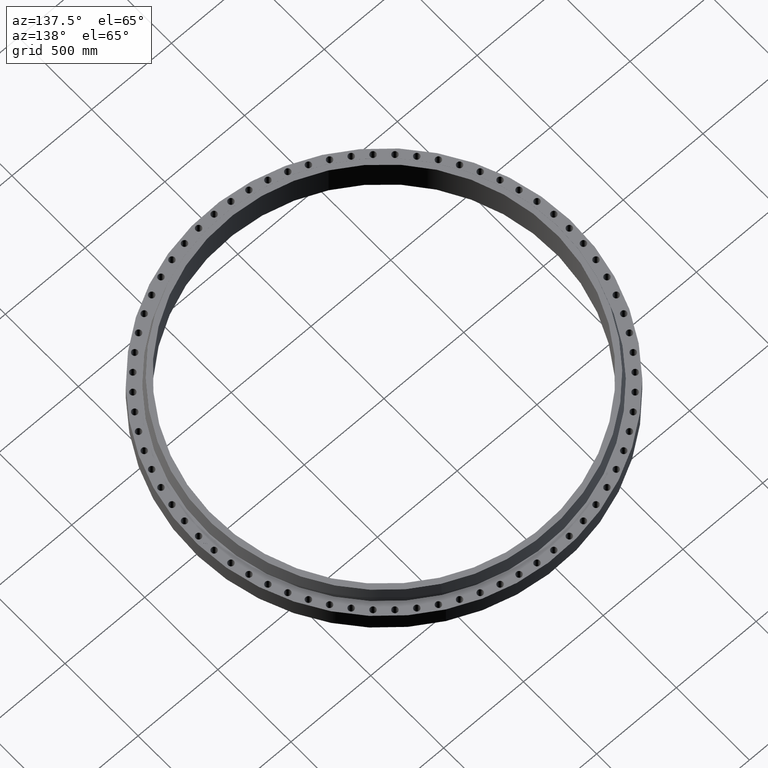
[diagram: clean part render]
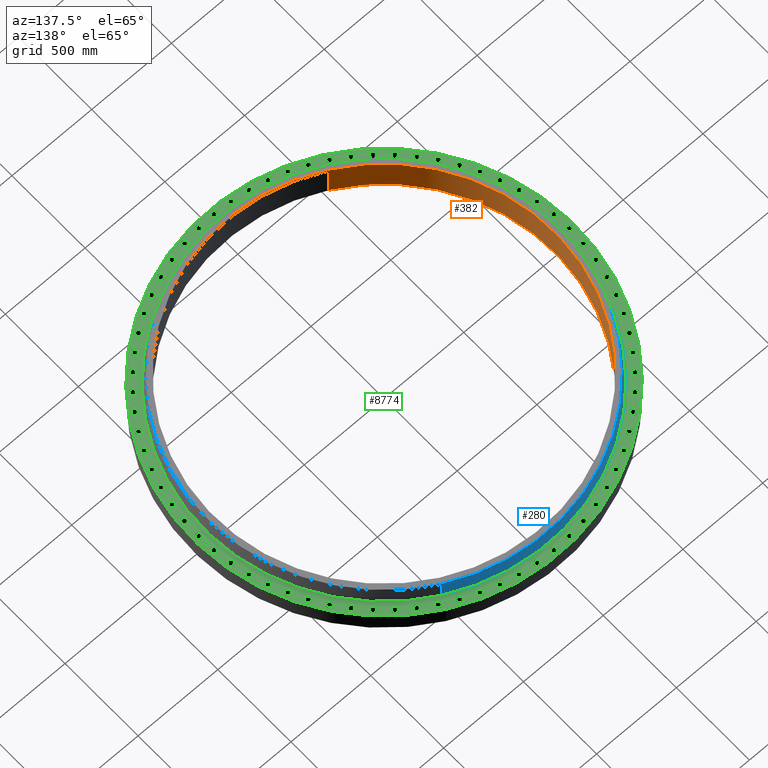
[diagram: same view with three faces highlighted in distinct colors, each labeled with its STEP entity id]
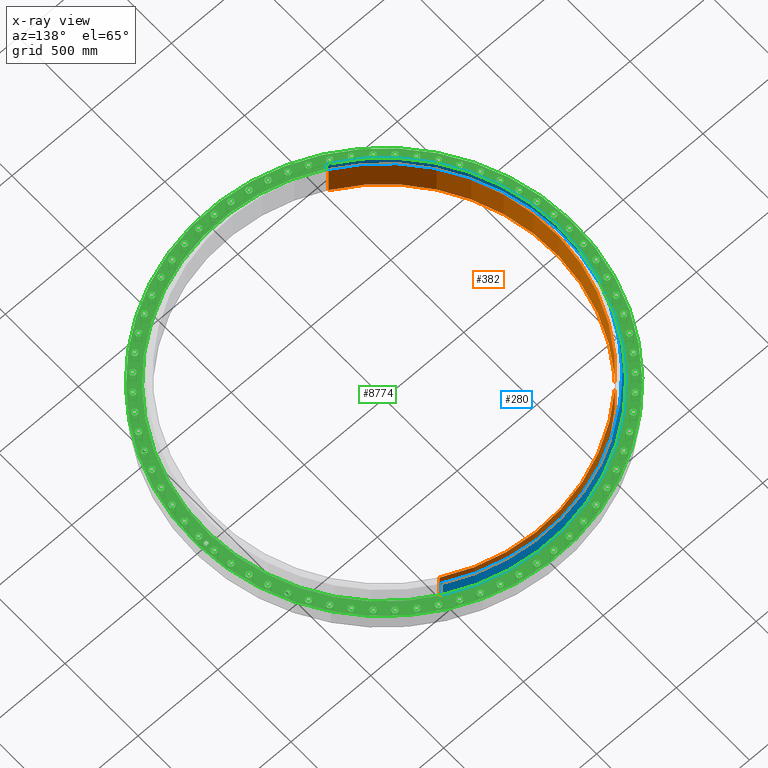
[diagram: x-ray of the same camera — body ghosted, the three highlighted faces saturated]
A machine part, auxiliary view with three faces highlighted in distinct colors.
The next image is the same camera in x-ray (body ghosted, the three faces saturated) — at least one of them is partly hidden behind the body in this view.
Their STEP definitions:

[orange] entity #382 — the highlighted cylindrical surface (partial cylindrical patch) has radius 1069.97 mm, axis along (0, 0, -1).
#335=AXIS2_PLACEMENT_3D('Circle Axis2P3D',#333,#334,$) ;
#355=AXIS2_PLACEMENT_3D('Cylinder Axis2P3D',#352,#353,#354) ;
#366=AXIS2_PLACEMENT_3D('Circle Axis2P3D',#364,#365,$) ;
#333=CARTESIAN_POINT('Axis2P3D Location',(0.,0.,8.50000000003)) ;
#337=CARTESIAN_POINT('Vertex',(-20.1958008138,-36.9681654198,8.50000000003)) ;
#339=CARTESIAN_POINT('Vertex',(20.1958008138,36.9681654198,8.50000000003)) ;
#352=CARTESIAN_POINT('Axis2P3D Location',(0.,0.,4.21875000002)) ;
#357=CARTESIAN_POINT('Line Origine',(-20.1958008138,-36.9681654198,4.21875000002)) ;
#361=CARTESIAN_POINT('Vertex',(-20.1958008138,-36.9681654198,-0.0625000000003)) ;
#364=CARTESIAN_POINT('Axis2P3D Location',(0.,0.,-0.0625000000003)) ;
#368=CARTESIAN_POINT('Vertex',(20.1958008138,36.9681654198,-0.0625000000003)) ;
#371=CARTESIAN_POINT('Line Origine',(20.1958008138,36.9681654198,4.21875000002)) ;
#334=DIRECTION('Axis2P3D Direction',(0.,0.,-0.0393700787402)) ;
#353=DIRECTION('Axis2P3D Direction',(0.,0.,-0.0393700787402)) ;
#354=DIRECTION('Axis2P3D XDirection',(0.0188750212049,0.0345504945626,0.)) ;
#358=DIRECTION('Vector Direction',(0.,0.,-0.0393700787402)) ;
#365=DIRECTION('Axis2P3D Direction',(0.,0.,-0.0393700787402)) ;
#372=DIRECTION('Vector Direction',(0.,0.,-0.0393700787402)) ;
#359=VECTOR('Line Direction',#358,0.0393700787402) ;
#373=VECTOR('Line Direction',#372,0.0393700787402) ;
#377=ORIENTED_EDGE('',*,*,#341,.F.) ;
#378=ORIENTED_EDGE('',*,*,#363,.T.) ;
#379=ORIENTED_EDGE('',*,*,#370,.T.) ;
#380=ORIENTED_EDGE('',*,*,#375,.F.) ;
#382=ADVANCED_FACE('PartBody',(#381),#356,.F.) ;
#336=CIRCLE('generated circle',#335,42.1250000002) ;
#367=CIRCLE('generated circle',#366,42.1250000002) ;
#356=CYLINDRICAL_SURFACE('generated cylinder',#355,42.1250000002) ;
#341=EDGE_CURVE('',#338,#340,#336,.T.) ;
#363=EDGE_CURVE('',#338,#362,#360,.T.) ;
#370=EDGE_CURVE('',#362,#369,#367,.T.) ;
#375=EDGE_CURVE('',#340,#369,#374,.T.) ;
#376=EDGE_LOOP('',(#377,#378,#379,#380)) ;
#381=FACE_OUTER_BOUND('',#376,.T.) ;
#360=LINE('Line',#357,#359) ;
#374=LINE('Line',#371,#373) ;
#338=VERTEX_POINT('',#337) ;
#340=VERTEX_POINT('',#339) ;
#362=VERTEX_POINT('',#361) ;
#369=VERTEX_POINT('',#368) ;

[blue] entity #280 — the highlighted conical surface has half-angle 10 deg.
#228=AXIS2_PLACEMENT_3D('Circle Axis2P3D',#226,#227,$) ;
#241=AXIS2_PLACEMENT_3D('Cone Axis2P3D',#238,#239,#240) ;
#271=AXIS2_PLACEMENT_3D('Circle Axis2P3D',#269,#270,$) ;
#199=CARTESIAN_POINT('Vertex',(21.090532327,38.6059604689,5.04958110936)) ;
#206=CARTESIAN_POINT('Vertex',(-21.090532327,-38.6059604689,5.04958110936)) ;
#226=CARTESIAN_POINT('Axis2P3D Location',(0.,0.,5.04958110936)) ;
#238=CARTESIAN_POINT('Axis2P3D Location',(0.,0.,8.45041889069)) ;
#243=CARTESIAN_POINT('Line Origine',(20.9467862977,38.3428351273,6.75000000003)) ;
#247=CARTESIAN_POINT('Vertex',(20.8030402684,38.0797097856,8.45041889069)) ;
#254=CARTESIAN_POINT('Vertex',(-20.8030402684,-38.0797097856,8.45041889069)) ;
#257=CARTESIAN_POINT('Line Origine',(-20.9467862977,-38.3428351273,6.75000000003)) ;
#269=CARTESIAN_POINT('Axis2P3D Location',(0.,0.,8.45041889069)) ;
#227=DIRECTION('Axis2P3D Direction',(0.,0.,-0.0393700787402)) ;
#239=DIRECTION('Axis2P3D Direction',(0.,0.,-0.0393700787402)) ;
#240=DIRECTION('Axis2P3D XDirection',(-0.0188750212049,-0.0345504945626,0.)) ;
#244=DIRECTION('Vector Direction',(0.00327761303565,0.00599963041829,-0.03877195878)) ;
#258=DIRECTION('Vector Direction',(-0.00327761303565,-0.00599963041829,-0.03877195878)) ;
#270=DIRECTION('Axis2P3D Direction',(0.,0.,-0.0393700787402)) ;
#245=VECTOR('Line Direction',#244,0.0393700787402) ;
#259=VECTOR('Line Direction',#258,0.0393700787402) ;
#275=ORIENTED_EDGE('',*,*,#230,.F.) ;
#276=ORIENTED_EDGE('',*,*,#261,.T.) ;
#277=ORIENTED_EDGE('',*,*,#273,.T.) ;
#278=ORIENTED_EDGE('',*,*,#249,.F.) ;
#280=ADVANCED_FACE('PartBody',(#279),#242,.T.) ;
#229=CIRCLE('generated circle',#228,43.9912575129) ;
#272=CIRCLE('generated circle',#271,43.391598055) ;
#242=CONICAL_SURFACE('Cone',#241,43.391598055,0.174532925199) ;
#230=EDGE_CURVE('',#207,#200,#229,.T.) ;
#249=EDGE_CURVE('',#200,#248,#246,.F.) ;
#261=EDGE_CURVE('',#207,#255,#260,.F.) ;
#273=EDGE_CURVE('',#255,#248,#272,.T.) ;
#274=EDGE_LOOP('',(#275,#276,#277,#278)) ;
#279=FACE_OUTER_BOUND('',#274,.T.) ;
#246=LINE('Line',#243,#245) ;
#260=LINE('Line',#257,#259) ;
#200=VERTEX_POINT('',#199) ;
#207=VERTEX_POINT('',#206) ;
#248=VERTEX_POINT('',#247) ;
#255=VERTEX_POINT('',#254) ;

[green] entity #8774 — the highlighted planar face has unit normal (0, 0, -1).
#65=AXIS2_PLACEMENT_3D('Circle Axis2P3D',#63,#64,$) ;
#110=AXIS2_PLACEMENT_3D('Circle Axis2P3D',#108,#109,$) ;
#147=AXIS2_PLACEMENT_3D('Circle Axis2P3D',#145,#146,$) ;
#171=AXIS2_PLACEMENT_3D('Circle Axis2P3D',#169,#170,$) ;
#188=AXIS2_PLACEMENT_3D('Circle Axis2P3D',#186,#187,$) ;
#223=AXIS2_PLACEMENT_3D('Circle Axis2P3D',#221,#222,$) ;
#5139=AXIS2_PLACEMENT_3D('Circle Axis2P3D',#5137,#5138,$) ;
#5151=AXIS2_PLACEMENT_3D('Circle Axis2P3D',#5149,#5150,$) ;
#5186=AXIS2_PLACEMENT_3D('Circle Axis2P3D',#5184,#5185,$) ;
#5198=AXIS2_PLACEMENT_3D('Circle Axis2P3D',#5196,#5197,$) ;
#5233=AXIS2_PLACEMENT_3D('Circle Axis2P3D',#5231,#5232,$) ;
#5245=AXIS2_PLACEMENT_3D('Circle Axis2P3D',#5243,#5244,$) ;
#5280=AXIS2_PLACEMENT_3D('Circle Axis2P3D',#5278,#5279,$) ;
#5292=AXIS2_PLACEMENT_3D('Circle Axis2P3D',#5290,#5291,$) ;
#5327=AXIS2_PLACEMENT_3D('Circle Axis2P3D',#5325,#5326,$) ;
#5339=AXIS2_PLACEMENT_3D('Circle Axis2P3D',#5337,#5338,$) ;
#5374=AXIS2_PLACEMENT_3D('Circle Axis2P3D',#5372,#5373,$) ;
#5386=AXIS2_PLACEMENT_3D('Circle Axis2P3D',#5384,#5385,$) ;
#5421=AXIS2_PLACEMENT_3D('Circle Axis2P3D',#5419,#5420,$) ;
#5433=AXIS2_PLACEMENT_3D('Circle Axis2P3D',#5431,#5432,$) ;
#5468=AXIS2_PLACEMENT_3D('Circle Axis2P3D',#5466,#5467,$) ;
#5480=AXIS2_PLACEMENT_3D('Circle Axis2P3D',#5478,#5479,$) ;
#5515=AXIS2_PLACEMENT_3D('Circle Axis2P3D',#5513,#5514,$) ;
#5527=AXIS2_PLACEMENT_3D('Circle Axis2P3D',#5525,#5526,$) ;
#5562=AXIS2_PLACEMENT_3D('Circle Axis2P3D',#5560,#5561,$) ;
#5574=AXIS2_PLACEMENT_3D('Circle Axis2P3D',#5572,#5573,$) ;
#5609=AXIS2_PLACEMENT_3D('Circle Axis2P3D',#5607,#5608,$) ;
#5621=AXIS2_PLACEMENT_3D('Circle Axis2P3D',#5619,#5620,$) ;
#5656=AXIS2_PLACEMENT_3D('Circle Axis2P3D',#5654,#5655,$) ;
#5668=AXIS2_PLACEMENT_3D('Circle Axis2P3D',#5666,#5667,$) ;
#5703=AXIS2_PLACEMENT_3D('Circle Axis2P3D',#5701,#5702,$) ;
#5715=AXIS2_PLACEMENT_3D('Circle Axis2P3D',#5713,#5714,$) ;
#5750=AXIS2_PLACEMENT_3D('Circle Axis2P3D',#5748,#5749,$) ;
#5762=AXIS2_PLACEMENT_3D('Circle Axis2P3D',#5760,#5761,$) ;
#5797=AXIS2_PLACEMENT_3D('Circle Axis2P3D',#5795,#5796,$) ;
#5809=AXIS2_PLACEMENT_3D('Circle Axis2P3D',#5807,#5808,$) ;
#5844=AXIS2_PLACEMENT_3D('Circle Axis2P3D',#5842,#5843,$) ;
#5856=AXIS2_PLACEMENT_3D('Circle Axis2P3D',#5854,#5855,$) ;
#5891=AXIS2_PLACEMENT_3D('Circle Axis2P3D',#5889,#5890,$) ;
#5903=AXIS2_PLACEMENT_3D('Circle Axis2P3D',#5901,#5902,$) ;
#5938=AXIS2_PLACEMENT_3D('Circle Axis2P3D',#5936,#5937,$) ;
#5950=AXIS2_PLACEMENT_3D('Circle Axis2P3D',#5948,#5949,$) ;
#5985=AXIS2_PLACEMENT_3D('Circle Axis2P3D',#5983,#5984,$) ;
#5997=AXIS2_PLACEMENT_3D('Circle Axis2P3D',#5995,#5996,$) ;
#6032=AXIS2_PLACEMENT_3D('Circle Axis2P3D',#6030,#6031,$) ;
#6044=AXIS2_PLACEMENT_3D('Circle Axis2P3D',#6042,#6043,$) ;
#6079=AXIS2_PLACEMENT_3D('Circle Axis2P3D',#6077,#6078,$) ;
#6091=AXIS2_PLACEMENT_3D('Circle Axis2P3D',#6089,#6090,$) ;
#6126=AXIS2_PLACEMENT_3D('Circle Axis2P3D',#6124,#6125,$) ;
#6138=AXIS2_PLACEMENT_3D('Circle Axis2P3D',#6136,#6137,$) ;
#6173=AXIS2_PLACEMENT_3D('Circle Axis2P3D',#6171,#6172,$) ;
#6185=AXIS2_PLACEMENT_3D('Circle Axis2P3D',#6183,#6184,$) ;
#6220=AXIS2_PLACEMENT_3D('Circle Axis2P3D',#6218,#6219,$) ;
#6232=AXIS2_PLACEMENT_3D('Circle Axis2P3D',#6230,#6231,$) ;
#6267=AXIS2_PLACEMENT_3D('Circle Axis2P3D',#6265,#6266,$) ;
#6279=AXIS2_PLACEMENT_3D('Circle Axis2P3D',#6277,#6278,$) ;
#6314=AXIS2_PLACEMENT_3D('Circle Axis2P3D',#6312,#6313,$) ;
#6326=AXIS2_PLACEMENT_3D('Circle Axis2P3D',#6324,#6325,$) ;
#6361=AXIS2_PLACEMENT_3D('Circle Axis2P3D',#6359,#6360,$) ;
#6373=AXIS2_PLACEMENT_3D('Circle Axis2P3D',#6371,#6372,$) ;
#6408=AXIS2_PLACEMENT_3D('Circle Axis2P3D',#6406,#6407,$) ;
#6420=AXIS2_PLACEMENT_3D('Circle Axis2P3D',#6418,#6419,$) ;
#6455=AXIS2_PLACEMENT_3D('Circle Axis2P3D',#6453,#6454,$) ;
#6467=AXIS2_PLACEMENT_3D('Circle Axis2P3D',#6465,#6466,$) ;
#6502=AXIS2_PLACEMENT_3D('Circle Axis2P3D',#6500,#6501,$) ;
#6514=AXIS2_PLACEMENT_3D('Circle Axis2P3D',#6512,#6513,$) ;
#6549=AXIS2_PLACEMENT_3D('Circle Axis2P3D',#6547,#6548,$) ;
#6561=AXIS2_PLACEMENT_3D('Circle Axis2P3D',#6559,#6560,$) ;
#6596=AXIS2_PLACEMENT_3D('Circle Axis2P3D',#6594,#6595,$) ;
#6608=AXIS2_PLACEMENT_3D('Circle Axis2P3D',#6606,#6607,$) ;
#6643=AXIS2_PLACEMENT_3D('Circle Axis2P3D',#6641,#6642,$) ;
#6655=AXIS2_PLACEMENT_3D('Circle Axis2P3D',#6653,#6654,$) ;
#6690=AXIS2_PLACEMENT_3D('Circle Axis2P3D',#6688,#6689,$) ;
#6702=AXIS2_PLACEMENT_3D('Circle Axis2P3D',#6700,#6701,$) ;
#6737=AXIS2_PLACEMENT_3D('Circle Axis2P3D',#6735,#6736,$) ;
#6749=AXIS2_PLACEMENT_3D('Circle Axis2P3D',#6747,#6748,$) ;
#6784=AXIS2_PLACEMENT_3D('Circle Axis2P3D',#6782,#6783,$) ;
#6796=AXIS2_PLACEMENT_3D('Circle Axis2P3D',#6794,#6795,$) ;
#6831=AXIS2_PLACEMENT_3D('Circle Axis2P3D',#6829,#6830,$) ;
#6843=AXIS2_PLACEMENT_3D('Circle Axis2P3D',#6841,#6842,$) ;
#6878=AXIS2_PLACEMENT_3D('Circle Axis2P3D',#6876,#6877,$) ;
#6890=AXIS2_PLACEMENT_3D('Circle Axis2P3D',#6888,#6889,$) ;
#6925=AXIS2_PLACEMENT_3D('Circle Axis2P3D',#6923,#6924,$) ;
#6937=AXIS2_PLACEMENT_3D('Circle Axis2P3D',#6935,#6936,$) ;
#6972=AXIS2_PLACEMENT_3D('Circle Axis2P3D',#6970,#6971,$) ;
#6984=AXIS2_PLACEMENT_3D('Circle Axis2P3D',#6982,#6983,$) ;
#7019=AXIS2_PLACEMENT_3D('Circle Axis2P3D',#7017,#7018,$) ;
#7031=AXIS2_PLACEMENT_3D('Circle Axis2P3D',#7029,#7030,$) ;
#7066=AXIS2_PLACEMENT_3D('Circle Axis2P3D',#7064,#7065,$) ;
#7078=AXIS2_PLACEMENT_3D('Circle Axis2P3D',#7076,#7077,$) ;
#7113=AXIS2_PLACEMENT_3D('Circle Axis2P3D',#7111,#7112,$) ;
#7125=AXIS2_PLACEMENT_3D('Circle Axis2P3D',#7123,#7124,$) ;
#7160=AXIS2_PLACEMENT_3D('Circle Axis2P3D',#7158,#7159,$) ;
#7172=AXIS2_PLACEMENT_3D('Circle Axis2P3D',#7170,#7171,$) ;
#7207=AXIS2_PLACEMENT_3D('Circle Axis2P3D',#7205,#7206,$) ;
#7219=AXIS2_PLACEMENT_3D('Circle Axis2P3D',#7217,#7218,$) ;
#7254=AXIS2_PLACEMENT_3D('Circle Axis2P3D',#7252,#7253,$) ;
#7266=AXIS2_PLACEMENT_3D('Circle Axis2P3D',#7264,#7265,$) ;
#7301=AXIS2_PLACEMENT_3D('Circle Axis2P3D',#7299,#7300,$) ;
#7313=AXIS2_PLACEMENT_3D('Circle Axis2P3D',#7311,#7312,$) ;
#7348=AXIS2_PLACEMENT_3D('Circle Axis2P3D',#7346,#7347,$) ;
#7360=AXIS2_PLACEMENT_3D('Circle Axis2P3D',#7358,#7359,$) ;
#7395=AXIS2_PLACEMENT_3D('Circle Axis2P3D',#7393,#7394,$) ;
#7407=AXIS2_PLACEMENT_3D('Circle Axis2P3D',#7405,#7406,$) ;
#7442=AXIS2_PLACEMENT_3D('Circle Axis2P3D',#7440,#7441,$) ;
#7454=AXIS2_PLACEMENT_3D('Circle Axis2P3D',#7452,#7453,$) ;
#7489=AXIS2_PLACEMENT_3D('Circle Axis2P3D',#7487,#7488,$) ;
#7501=AXIS2_PLACEMENT_3D('Circle Axis2P3D',#7499,#7500,$) ;
#7536=AXIS2_PLACEMENT_3D('Circle Axis2P3D',#7534,#7535,$) ;
#7548=AXIS2_PLACEMENT_3D('Circle Axis2P3D',#7546,#7547,$) ;
#7583=AXIS2_PLACEMENT_3D('Circle Axis2P3D',#7581,#7582,$) ;
#7595=AXIS2_PLACEMENT_3D('Circle Axis2P3D',#7593,#7594,$) ;
#7630=AXIS2_PLACEMENT_3D('Circle Axis2P3D',#7628,#7629,$) ;
#7642=AXIS2_PLACEMENT_3D('Circle Axis2P3D',#7640,#7641,$) ;
#7677=AXIS2_PLACEMENT_3D('Circle Axis2P3D',#7675,#7676,$) ;
#7689=AXIS2_PLACEMENT_3D('Circle Axis2P3D',#7687,#7688,$) ;
#7724=AXIS2_PLACEMENT_3D('Circle Axis2P3D',#7722,#7723,$) ;
#7736=AXIS2_PLACEMENT_3D('Circle Axis2P3D',#7734,#7735,$) ;
#7771=AXIS2_PLACEMENT_3D('Circle Axis2P3D',#7769,#7770,$) ;
#7783=AXIS2_PLACEMENT_3D('Circle Axis2P3D',#7781,#7782,$) ;
#7818=AXIS2_PLACEMENT_3D('Circle Axis2P3D',#7816,#7817,$) ;
#7830=AXIS2_PLACEMENT_3D('Circle Axis2P3D',#7828,#7829,$) ;
#7865=AXIS2_PLACEMENT_3D('Circle Axis2P3D',#7863,#7864,$) ;
#7877=AXIS2_PLACEMENT_3D('Circle Axis2P3D',#7875,#7876,$) ;
#7912=AXIS2_PLACEMENT_3D('Circle Axis2P3D',#7910,#7911,$) ;
#7924=AXIS2_PLACEMENT_3D('Circle Axis2P3D',#7922,#7923,$) ;
#7959=AXIS2_PLACEMENT_3D('Circle Axis2P3D',#7957,#7958,$) ;
#7971=AXIS2_PLACEMENT_3D('Circle Axis2P3D',#7969,#7970,$) ;
#8006=AXIS2_PLACEMENT_3D('Circle Axis2P3D',#8004,#8005,$) ;
#8018=AXIS2_PLACEMENT_3D('Circle Axis2P3D',#8016,#8017,$) ;
#8053=AXIS2_PLACEMENT_3D('Circle Axis2P3D',#8051,#8052,$) ;
#8065=AXIS2_PLACEMENT_3D('Circle Axis2P3D',#8063,#8064,$) ;
#8100=AXIS2_PLACEMENT_3D('Circle Axis2P3D',#8098,#8099,$) ;
#8112=AXIS2_PLACEMENT_3D('Circle Axis2P3D',#8110,#8111,$) ;
#8147=AXIS2_PLACEMENT_3D('Circle Axis2P3D',#8145,#8146,$) ;
#8159=AXIS2_PLACEMENT_3D('Circle Axis2P3D',#8157,#8158,$) ;
#8194=AXIS2_PLACEMENT_3D('Circle Axis2P3D',#8192,#8193,$) ;
#8206=AXIS2_PLACEMENT_3D('Circle Axis2P3D',#8204,#8205,$) ;
#8241=AXIS2_PLACEMENT_3D('Circle Axis2P3D',#8239,#8240,$) ;
#8253=AXIS2_PLACEMENT_3D('Circle Axis2P3D',#8251,#8252,$) ;
#8288=AXIS2_PLACEMENT_3D('Circle Axis2P3D',#8286,#8287,$) ;
#8300=AXIS2_PLACEMENT_3D('Circle Axis2P3D',#8298,#8299,$) ;
#8335=AXIS2_PLACEMENT_3D('Circle Axis2P3D',#8333,#8334,$) ;
#8347=AXIS2_PLACEMENT_3D('Circle Axis2P3D',#8345,#8346,$) ;
#8382=AXIS2_PLACEMENT_3D('Circle Axis2P3D',#8380,#8381,$) ;
#8394=AXIS2_PLACEMENT_3D('Circle Axis2P3D',#8392,#8393,$) ;
#8429=AXIS2_PLACEMENT_3D('Circle Axis2P3D',#8427,#8428,$) ;
#8441=AXIS2_PLACEMENT_3D('Circle Axis2P3D',#8439,#8440,$) ;
#8458=AXIS2_PLACEMENT_3D('Plane Axis2P3D',#8455,#8456,#8457) ;
#8758=AXIS2_PLACEMENT_3D('Circle Axis2P3D',#8756,#8757,$) ;
#8767=AXIS2_PLACEMENT_3D('Circle Axis2P3D',#8765,#8766,$) ;
#46=CARTESIAN_POINT('Vertex',(45.1444680325,0.330803621638,5.00000000002)) ;
#60=CARTESIAN_POINT('Vertex',(46.3555319679,-0.330803621638,5.00000000002)) ;
#63=CARTESIAN_POINT('Axis2P3D Location',(45.7500000002,0.,5.00000000002)) ;
#108=CARTESIAN_POINT('Axis2P3D Location',(45.7500000002,0.,5.00000000002)) ;
#142=CARTESIAN_POINT('Vertex',(-22.5330003145,-41.246380409,5.00000000002)) ;
#145=CARTESIAN_POINT('Axis2P3D Location',(0.,0.,5.00000000002)) ;
#149=CARTESIAN_POINT('Vertex',(22.5330003145,41.246380409,5.00000000002)) ;
#169=CARTESIAN_POINT('Axis2P3D Location',(0.,0.,5.00000000002)) ;
#186=CARTESIAN_POINT('Axis2P3D Location',(0.,0.,5.00000000002)) ;
#190=CARTESIAN_POINT('Vertex',(21.1188608462,38.6578154756,5.00000000002)) ;
#192=CARTESIAN_POINT('Vertex',(-21.1188608462,-38.6578154756,5.00000000002)) ;
#221=CARTESIAN_POINT('Axis2P3D Location',(0.,0.,5.00000000002)) ;
#5127=CARTESIAN_POINT('Vertex',(44.4011786779,8.1650325769,5.00000000002)) ;
#5134=CARTESIAN_POINT('Vertex',(45.708730723,7.72377567969,5.00000000002)) ;
#5137=CARTESIAN_POINT('Axis2P3D Location',(45.0549547005,7.94440412829,5.00000000002)) ;
#5149=CARTESIAN_POINT('Axis2P3D Location',(45.0549547005,7.94440412829,5.00000000002)) ;
#5174=CARTESIAN_POINT('Vertex',(11.3647163463,43.6918258641,5.00000000002)) ;
#5181=CARTESIAN_POINT('Vertex',(12.3172262807,44.6903872417,5.00000000002)) ;
#5184=CARTESIAN_POINT('Axis2P3D Location',(11.8409713135,44.1911065529,5.00000000002)) ;
#5196=CARTESIAN_POINT('Axis2P3D Location',(11.8409713135,44.1911065529,5.00000000002)) ;
#5221=CARTESIAN_POINT('Vertex',(22.2857496762,39.2616579673,5.00000000002)) ;
#5228=CARTESIAN_POINT('Vertex',(23.4642503239,39.9796664793,5.00000000002)) ;
#5231=CARTESIAN_POINT('Axis2P3D Location',(22.8750000001,39.6206622233,5.00000000002)) ;
#5243=CARTESIAN_POINT('Axis2P3D Location',(22.8750000001,39.6206622233,5.00000000002)) ;
#5268=CARTESIAN_POINT('Vertex',(45.0015111375,-3.60505482833,5.00000000002)) ;
#5275=CARTESIAN_POINT('Vertex',(46.1503037383,-4.36969563311,5.00000000002)) ;
#5278=CARTESIAN_POINT('Axis2P3D Location',(45.5759074379,-3.98737523072,5.00000000002)) ;
#5290=CARTESIAN_POINT('Axis2P3D Location',(45.5759074379,-3.98737523072,5.00000000002)) ;
#5315=CARTESIAN_POINT('Vertex',(-29.2717149733,34.3700324046,5.00000000002)) ;
#5322=CARTESIAN_POINT('Vertex',(-29.5433513133,35.7230341411,5.00000000002)) ;
#5325=CARTESIAN_POINT('Axis2P3D Location',(-29.4075331433,35.0465332728,5.00000000002)) ;
#5337=CARTESIAN_POINT('Axis2P3D Location',(-29.4075331433,35.0465332728,5.00000000002)) ;
#5362=CARTESIAN_POINT('Vertex',(44.5160655701,-7.51347663427,5.00000000002)) ;
#5369=CARTESIAN_POINT('Vertex',(45.5938438309,-8.37533162232,5.00000000002)) ;
#5372=CARTESIAN_POINT('Axis2P3D Location',(45.0549547005,-7.94440412829,5.00000000002)) ;
#5384=CARTESIAN_POINT('Axis2P3D Location',(45.0549547005,-7.94440412829,5.00000000002)) ;
#5409=CARTESIAN_POINT('Vertex',(-41.054586571,18.7790667088,5.00000000002)) ;
#5416=CARTESIAN_POINT('Vertex',(-41.8725759432,19.8905042406,5.00000000002)) ;
#5419=CARTESIAN_POINT('Axis2P3D Location',(-41.4635812571,19.3347854747,5.00000000002)) ;
#5431=CARTESIAN_POINT('Axis2P3D Location',(-41.4635812571,19.3347854747,5.00000000002)) ;
#5456=CARTESIAN_POINT('Vertex',(43.6918258641,-11.3647163463,5.00000000002)) ;
#5463=CARTESIAN_POINT('Vertex',(44.6903872417,-12.3172262807,5.00000000002)) ;
#5466=CARTESIAN_POINT('Axis2P3D Location',(44.1911065529,-11.8409713135,5.00000000002)) ;
#5478=CARTESIAN_POINT('Axis2P3D Location',(44.1911065529,-11.8409713135,5.00000000002)) ;
#5503=CARTESIAN_POINT('Vertex',(-37.1699244396,25.6228246321,5.00000000002)) ;
#5510=CARTESIAN_POINT('Vertex',(-37.7824876132,26.8594192942,5.00000000002)) ;
#5513=CARTESIAN_POINT('Axis2P3D Location',(-37.4762060264,26.2411219632,5.00000000002)) ;
#5525=CARTESIAN_POINT('Axis2P3D Location',(-37.4762060264,26.2411219632,5.00000000002)) ;
#5550=CARTESIAN_POINT('Vertex',(42.5350649815,-15.1294637046,5.00000000002)) ;
#5557=CARTESIAN_POINT('Vertex',(43.4468098207,-16.1653794098,5.00000000002)) ;
#5560=CARTESIAN_POINT('Axis2P3D Location',(42.9909374011,-15.6474215572,5.00000000002)) ;
#5572=CARTESIAN_POINT('Axis2P3D Location',(42.9909374011,-15.6474215572,5.00000000002)) ;
#5597=CARTESIAN_POINT('Vertex',(38.9308543456,22.8587183562,5.00000000002)) ;
#5604=CARTESIAN_POINT('Vertex',(40.310470101,22.8912816439,5.00000000002)) ;
#5607=CARTESIAN_POINT('Axis2P3D Location',(39.6206622233,22.8750000001,5.00000000002)) ;
#5619=CARTESIAN_POINT('Axis2P3D Location',(39.6206622233,22.8750000001,5.00000000002)) ;
#5644=CARTESIAN_POINT('Vertex',(41.054586571,-18.7790667088,5.00000000002)) ;
#5651=CARTESIAN_POINT('Vertex',(41.8725759432,-19.8905042406,5.00000000002)) ;
#5654=CARTESIAN_POINT('Axis2P3D Location',(41.4635812571,-19.3347854747,5.00000000002)) ;
#5666=CARTESIAN_POINT('Axis2P3D Location',(41.4635812571,-19.3347854747,5.00000000002)) ;
#5691=CARTESIAN_POINT('Vertex',(40.7749792679,19.3786865054,5.00000000002)) ;
#5698=CARTESIAN_POINT('Vertex',(42.1521832463,19.2908844441,5.00000000002)) ;
#5701=CARTESIAN_POINT('Axis2P3D Location',(41.4635812571,19.3347854747,5.00000000002)) ;
#5713=CARTESIAN_POINT('Axis2P3D Location',(41.4635812571,19.3347854747,5.00000000002)) ;
#5738=CARTESIAN_POINT('Vertex',(39.2616579673,-22.2857496762,5.00000000002)) ;
#5745=CARTESIAN_POINT('Vertex',(39.9796664793,-23.4642503239,5.00000000002)) ;
#5748=CARTESIAN_POINT('Axis2P3D Location',(39.6206622233,-22.8750000001,5.00000000002)) ;
#5760=CARTESIAN_POINT('Axis2P3D Location',(39.6206622233,-22.8750000001,5.00000000002)) ;
#5785=CARTESIAN_POINT('Vertex',(-0.330803621638,45.1444680325,5.00000000002)) ;
#5792=CARTESIAN_POINT('Vertex',(0.330803621638,46.3555319679,5.00000000002)) ;
#5795=CARTESIAN_POINT('Axis2P3D Location',(-8.40413865918E-015,45.7500000002,5.00000000002)) ;
#5807=CARTESIAN_POINT('Axis2P3D Location',(-8.40413865918E-015,45.7500000002,5.00000000002)) ;
#5832=CARTESIAN_POINT('Vertex',(37.1699244396,-25.6228246321,5.00000000002)) ;
#5839=CARTESIAN_POINT('Vertex',(37.7824876132,-26.8594192942,5.00000000002)) ;
#5842=CARTESIAN_POINT('Axis2P3D Location',(37.4762060264,-26.2411219632,5.00000000002)) ;
#5854=CARTESIAN_POINT('Axis2P3D Location',(37.4762060264,-26.2411219632,5.00000000002)) ;
#5879=CARTESIAN_POINT('Vertex',(-4.2641444563,44.9438482668,5.00000000002)) ;
#5886=CARTESIAN_POINT('Vertex',(-3.71060600514,46.207966609,5.00000000002)) ;
#5889=CARTESIAN_POINT('Axis2P3D Location',(-3.98737523072,45.5759074379,5.00000000002)) ;
#5901=CARTESIAN_POINT('Axis2P3D Location',(-3.98737523072,45.5759074379,5.00000000002)) ;
#5926=CARTESIAN_POINT('Vertex',(34.7953053431,-28.764894421,5.00000000002)) ;
#5933=CARTESIAN_POINT('Vertex',(35.2977612026,-30.0501718655,5.00000000002)) ;
#5936=CARTESIAN_POINT('Axis2P3D Location',(35.0465332728,-29.4075331433,5.00000000002)) ;
#5948=CARTESIAN_POINT('Axis2P3D Location',(35.0465332728,-29.4075331433,5.00000000002)) ;
#5973=CARTESIAN_POINT('Vertex',(-19.3786865054,40.7749792679,5.00000000002)) ;
#5980=CARTESIAN_POINT('Vertex',(-19.2908844441,42.1521832463,5.00000000002)) ;
#5983=CARTESIAN_POINT('Axis2P3D Location',(-19.3347854747,41.4635812571,5.00000000002)) ;
#5995=CARTESIAN_POINT('Axis2P3D Location',(-19.3347854747,41.4635812571,5.00000000002)) ;
#6020=CARTESIAN_POINT('Vertex',(32.1558729629,-31.6880459947,5.00000000002)) ;
#6027=CARTESIAN_POINT('Vertex',(32.5443975159,-33.0122244841,5.00000000002)) ;
#6030=CARTESIAN_POINT('Axis2P3D Location',(32.3501352394,-32.3501352394,5.00000000002)) ;
#6042=CARTESIAN_POINT('Axis2P3D Location',(32.3501352394,-32.3501352394,5.00000000002)) ;
#6067=CARTESIAN_POINT('Vertex',(-43.6918258641,11.3647163463,5.00000000002)) ;
#6074=CARTESIAN_POINT('Vertex',(-44.6903872417,12.3172262807,5.00000000002)) ;
#6077=CARTESIAN_POINT('Axis2P3D Location',(-44.1911065529,11.8409713135,5.00000000002)) ;
#6089=CARTESIAN_POINT('Axis2P3D Location',(-44.1911065529,11.8409713135,5.00000000002)) ;
#6114=CARTESIAN_POINT('Vertex',(29.2717149733,-34.3700324046,5.00000000002)) ;
#6121=CARTESIAN_POINT('Vertex',(29.5433513133,-35.7230341411,5.00000000002)) ;
#6124=CARTESIAN_POINT('Axis2P3D Location',(29.4075331433,-35.0465332728,5.00000000002)) ;
#6136=CARTESIAN_POINT('Axis2P3D Location',(29.4075331433,-35.0465332728,5.00000000002)) ;
#6161=CARTESIAN_POINT('Vertex',(43.5205893092,12.0037798694,5.00000000002)) ;
#6168=CARTESIAN_POINT('Vertex',(44.8616237966,11.6781627576,5.00000000002)) ;
#6171=CARTESIAN_POINT('Axis2P3D Location',(44.1911065529,11.8409713135,5.00000000002)) ;
#6183=CARTESIAN_POINT('Axis2P3D Location',(44.1911065529,11.8409713135,5.00000000002)) ;
#6208=CARTESIAN_POINT('Vertex',(26.164781558,-36.7904421147,5.00000000002)) ;
#6215=CARTESIAN_POINT('Vertex',(26.3174623684,-38.161969938,5.00000000002)) ;
#6218=CARTESIAN_POINT('Axis2P3D Location',(26.2411219632,-37.4762060264,5.00000000002)) ;
#6230=CARTESIAN_POINT('Axis2P3D Location',(26.2411219632,-37.4762060264,5.00000000002)) ;
#6255=CARTESIAN_POINT('Vertex',(-45.1444680325,-0.330803621638,5.00000000002)) ;
#6262=CARTESIAN_POINT('Vertex',(-46.3555319679,0.330803621638,5.00000000002)) ;
#6265=CARTESIAN_POINT('Axis2P3D Location',(-45.7500000002,-5.60275910612E-015,5.00000000002)) ;
#6277=CARTESIAN_POINT('Axis2P3D Location',(-45.7500000002,-5.60275910612E-015,5.00000000002)) ;
#6302=CARTESIAN_POINT('Vertex',(22.8587183562,-38.9308543456,5.00000000002)) ;
#6309=CARTESIAN_POINT('Vertex',(22.8912816439,-40.310470101,5.00000000002)) ;
#6312=CARTESIAN_POINT('Axis2P3D Location',(22.8750000001,-39.6206622233,5.00000000002)) ;
#6324=CARTESIAN_POINT('Axis2P3D Location',(22.8750000001,-39.6206622233,5.00000000002)) ;
#6349=CARTESIAN_POINT('Vertex',(18.7790667088,41.054586571,5.00000000002)) ;
#6356=CARTESIAN_POINT('Vertex',(19.8905042406,41.8725759432,5.00000000002)) ;
#6359=CARTESIAN_POINT('Axis2P3D Location',(19.3347854747,41.4635812571,5.00000000002)) ;
#6371=CARTESIAN_POINT('Axis2P3D Location',(19.3347854747,41.4635812571,5.00000000002)) ;
#6396=CARTESIAN_POINT('Vertex',(19.3786865054,-40.7749792679,5.00000000002)) ;
#6403=CARTESIAN_POINT('Vertex',(19.2908844441,-42.1521832463,5.00000000002)) ;
#6406=CARTESIAN_POINT('Axis2P3D Location',(19.3347854747,-41.4635812571,5.00000000002)) ;
#6418=CARTESIAN_POINT('Axis2P3D Location',(19.3347854747,-41.4635812571,5.00000000002)) ;
#6443=CARTESIAN_POINT('Vertex',(-44.5160655701,7.51347663427,5.00000000002)) ;
#6450=CARTESIAN_POINT('Vertex',(-45.5938438309,8.37533162232,5.00000000002)) ;
#6453=CARTESIAN_POINT('Axis2P3D Location',(-45.0549547005,7.94440412829,5.00000000002)) ;
#6465=CARTESIAN_POINT('Axis2P3D Location',(-45.0549547005,7.94440412829,5.00000000002)) ;
#6490=CARTESIAN_POINT('Vertex',(15.751171149,-42.3087819773,5.00000000002)) ;
#6497=CARTESIAN_POINT('Vertex',(15.5436719654,-43.6730928249,5.00000000002)) ;
#6500=CARTESIAN_POINT('Axis2P3D Location',(15.6474215572,-42.9909374011,5.00000000002)) ;
#6512=CARTESIAN_POINT('Axis2P3D Location',(15.6474215572,-42.9909374011,5.00000000002)) ;
#6537=CARTESIAN_POINT('Vertex',(-39.2616579673,22.2857496762,5.00000000002)) ;
#6544=CARTESIAN_POINT('Vertex',(-39.9796664793,23.4642503239,5.00000000002)) ;
#6547=CARTESIAN_POINT('Axis2P3D Location',(-39.6206622233,22.8750000001,5.00000000002)) ;
#6559=CARTESIAN_POINT('Axis2P3D Location',(-39.6206622233,22.8750000001,5.00000000002)) ;
#6584=CARTESIAN_POINT('Vertex',(12.0037798694,-43.5205893092,5.00000000002)) ;
#6591=CARTESIAN_POINT('Vertex',(11.6781627576,-44.8616237966,5.00000000002)) ;
#6594=CARTESIAN_POINT('Axis2P3D Location',(11.8409713135,-44.1911065529,5.00000000002)) ;
#6606=CARTESIAN_POINT('Axis2P3D Location',(11.8409713135,-44.1911065529,5.00000000002)) ;
#6631=CARTESIAN_POINT('Vertex',(-22.8587183562,38.9308543456,5.00000000002)) ;
#6638=CARTESIAN_POINT('Vertex',(-22.8912816439,40.310470101,5.00000000002)) ;
#6641=CARTESIAN_POINT('Axis2P3D Location',(-22.8750000001,39.6206622233,5.00000000002)) ;
#6653=CARTESIAN_POINT('Axis2P3D Location',(-22.8750000001,39.6206622233,5.00000000002)) ;
#6678=CARTESIAN_POINT('Vertex',(8.1650325769,-44.4011786779,5.00000000002)) ;
#6685=CARTESIAN_POINT('Vertex',(7.72377567969,-45.708730723,5.00000000002)) ;
#6688=CARTESIAN_POINT('Axis2P3D Location',(7.94440412829,-45.0549547005,5.00000000002)) ;
#6700=CARTESIAN_POINT('Axis2P3D Location',(7.94440412829,-45.0549547005,5.00000000002)) ;
#6725=CARTESIAN_POINT('Vertex',(42.3087819773,15.751171149,5.00000000002)) ;
#6732=CARTESIAN_POINT('Vertex',(43.6730928249,15.5436719654,5.00000000002)) ;
#6735=CARTESIAN_POINT('Axis2P3D Location',(42.9909374011,15.6474215572,5.00000000002)) ;
#6747=CARTESIAN_POINT('Axis2P3D Location',(42.9909374011,15.6474215572,5.00000000002)) ;
#6772=CARTESIAN_POINT('Vertex',(4.2641444563,-44.9438482668,5.00000000002)) ;
#6779=CARTESIAN_POINT('Vertex',(3.71060600514,-46.207966609,5.00000000002)) ;
#6782=CARTESIAN_POINT('Axis2P3D Location',(3.98737523072,-45.5759074379,5.00000000002)) ;
#6794=CARTESIAN_POINT('Axis2P3D Location',(3.98737523072,-45.5759074379,5.00000000002)) ;
#6819=CARTESIAN_POINT('Vertex',(-42.5350649815,15.1294637046,5.00000000002)) ;
#6826=CARTESIAN_POINT('Vertex',(-43.4468098207,16.1653794098,5.00000000002)) ;
#6829=CARTESIAN_POINT('Axis2P3D Location',(-42.9909374011,15.6474215572,5.00000000002)) ;
#6841=CARTESIAN_POINT('Axis2P3D Location',(-42.9909374011,15.6474215572,5.00000000002)) ;
#6866=CARTESIAN_POINT('Vertex',(0.330803621638,-45.1444680325,5.00000000002)) ;
#6873=CARTESIAN_POINT('Vertex',(-0.330803621638,-46.3555319679,5.00000000002)) ;
#6876=CARTESIAN_POINT('Axis2P3D Location',(2.80137955306E-015,-45.7500000002,5.00000000002)) ;
#6888=CARTESIAN_POINT('Axis2P3D Location',(2.80137955306E-015,-45.7500000002,5.00000000002)) ;
#6913=CARTESIAN_POINT('Vertex',(-15.751171149,42.3087819773,5.00000000002)) ;
#6920=CARTESIAN_POINT('Vertex',(-15.5436719654,43.6730928249,5.00000000002)) ;
#6923=CARTESIAN_POINT('Axis2P3D Location',(-15.6474215572,42.9909374011,5.00000000002)) ;
#6935=CARTESIAN_POINT('Axis2P3D Location',(-15.6474215572,42.9909374011,5.00000000002)) ;
#6960=CARTESIAN_POINT('Vertex',(-3.60505482833,-45.0015111375,5.00000000002)) ;
#6967=CARTESIAN_POINT('Vertex',(-4.36969563311,-46.1503037383,5.00000000002)) ;
#6970=CARTESIAN_POINT('Axis2P3D Location',(-3.98737523072,-45.5759074379,5.00000000002)) ;
#6982=CARTESIAN_POINT('Axis2P3D Location',(-3.98737523072,-45.5759074379,5.00000000002)) ;
#7007=CARTESIAN_POINT('Vertex',(-32.1558729629,31.6880459947,5.00000000002)) ;
#7014=CARTESIAN_POINT('Vertex',(-32.5443975159,33.0122244841,5.00000000002)) ;
#7017=CARTESIAN_POINT('Axis2P3D Location',(-32.3501352394,32.3501352394,5.00000000002)) ;
#7029=CARTESIAN_POINT('Axis2P3D Location',(-32.3501352394,32.3501352394,5.00000000002)) ;
#7054=CARTESIAN_POINT('Vertex',(-7.51347663427,-44.5160655701,5.00000000002)) ;
#7061=CARTESIAN_POINT('Vertex',(-8.37533162232,-45.5938438309,5.00000000002)) ;
#7064=CARTESIAN_POINT('Axis2P3D Location',(-7.94440412829,-45.0549547005,5.00000000002)) ;
#7076=CARTESIAN_POINT('Axis2P3D Location',(-7.94440412829,-45.0549547005,5.00000000002)) ;
#7101=CARTESIAN_POINT('Vertex',(34.3700324046,29.2717149733,5.00000000002)) ;
#7108=CARTESIAN_POINT('Vertex',(35.7230341411,29.5433513133,5.00000000002)) ;
#7111=CARTESIAN_POINT('Axis2P3D Location',(35.0465332728,29.4075331433,5.00000000002)) ;
#7123=CARTESIAN_POINT('Axis2P3D Location',(35.0465332728,29.4075331433,5.00000000002)) ;
#7148=CARTESIAN_POINT('Vertex',(-11.3647163463,-43.6918258641,5.00000000002)) ;
#7155=CARTESIAN_POINT('Vertex',(-12.3172262807,-44.6903872417,5.00000000002)) ;
#7158=CARTESIAN_POINT('Axis2P3D Location',(-11.8409713135,-44.1911065529,5.00000000002)) ;
#7170=CARTESIAN_POINT('Axis2P3D Location',(-11.8409713135,-44.1911065529,5.00000000002)) ;
#7195=CARTESIAN_POINT('Vertex',(36.7904421147,26.164781558,5.00000000002)) ;
#7202=CARTESIAN_POINT('Vertex',(38.161969938,26.3174623684,5.00000000002)) ;
#7205=CARTESIAN_POINT('Axis2P3D Location',(37.4762060264,26.2411219632,5.00000000002)) ;
#7217=CARTESIAN_POINT('Axis2P3D Location',(37.4762060264,26.2411219632,5.00000000002)) ;
#7242=CARTESIAN_POINT('Vertex',(-15.1294637046,-42.5350649815,5.00000000002)) ;
#7249=CARTESIAN_POINT('Vertex',(-16.1653794098,-43.4468098207,5.00000000002)) ;
#7252=CARTESIAN_POINT('Axis2P3D Location',(-15.6474215572,-42.9909374011,5.00000000002)) ;
#7264=CARTESIAN_POINT('Axis2P3D Location',(-15.6474215572,-42.9909374011,5.00000000002)) ;
#7289=CARTESIAN_POINT('Vertex',(-44.9438482668,-4.2641444563,5.00000000002)) ;
#7296=CARTESIAN_POINT('Vertex',(-46.207966609,-3.71060600514,5.00000000002)) ;
#7299=CARTESIAN_POINT('Axis2P3D Location',(-45.5759074379,-3.98737523072,5.00000000002)) ;
#7311=CARTESIAN_POINT('Axis2P3D Location',(-45.5759074379,-3.98737523072,5.00000000002)) ;
#7336=CARTESIAN_POINT('Vertex',(-18.7790667088,-41.054586571,5.00000000002)) ;
#7343=CARTESIAN_POINT('Vertex',(-19.8905042406,-41.8725759432,5.00000000002)) ;
#7346=CARTESIAN_POINT('Axis2P3D Location',(-19.3347854747,-41.4635812571,5.00000000002)) ;
#7358=CARTESIAN_POINT('Axis2P3D Location',(-19.3347854747,-41.4635812571,5.00000000002)) ;
#7383=CARTESIAN_POINT('Vertex',(31.6880459947,32.1558729629,5.00000000002)) ;
#7390=CARTESIAN_POINT('Vertex',(33.0122244841,32.5443975159,5.00000000002)) ;
#7393=CARTESIAN_POINT('Axis2P3D Location',(32.3501352394,32.3501352394,5.00000000002)) ;
#7405=CARTESIAN_POINT('Axis2P3D Location',(32.3501352394,32.3501352394,5.00000000002)) ;
#7430=CARTESIAN_POINT('Vertex',(-22.2857496762,-39.2616579673,5.00000000002)) ;
#7437=CARTESIAN_POINT('Vertex',(-23.4642503239,-39.9796664793,5.00000000002)) ;
#7440=CARTESIAN_POINT('Axis2P3D Location',(-22.8750000001,-39.6206622233,5.00000000002)) ;
#7452=CARTESIAN_POINT('Axis2P3D Location',(-22.8750000001,-39.6206622233,5.00000000002)) ;
#7477=CARTESIAN_POINT('Vertex',(15.1294637046,42.5350649815,5.00000000002)) ;
#7484=CARTESIAN_POINT('Vertex',(16.1653794098,43.4468098207,5.00000000002)) ;
#7487=CARTESIAN_POINT('Axis2P3D Location',(15.6474215572,42.9909374011,5.00000000002)) ;
#7499=CARTESIAN_POINT('Axis2P3D Location',(15.6474215572,42.9909374011,5.00000000002)) ;
#7524=CARTESIAN_POINT('Vertex',(-25.6228246321,-37.1699244396,5.00000000002)) ;
#7531=CARTESIAN_POINT('Vertex',(-26.8594192942,-37.7824876132,5.00000000002)) ;
#7534=CARTESIAN_POINT('Axis2P3D Location',(-26.2411219632,-37.4762060264,5.00000000002)) ;
#7546=CARTESIAN_POINT('Axis2P3D Location',(-26.2411219632,-37.4762060264,5.00000000002)) ;
#7571=CARTESIAN_POINT('Vertex',(28.764894421,34.7953053431,5.00000000002)) ;
#7578=CARTESIAN_POINT('Vertex',(30.0501718655,35.2977612026,5.00000000002)) ;
#7581=CARTESIAN_POINT('Axis2P3D Location',(29.4075331433,35.0465332728,5.00000000002)) ;
#7593=CARTESIAN_POINT('Axis2P3D Location',(29.4075331433,35.0465332728,5.00000000002)) ;
#7618=CARTESIAN_POINT('Vertex',(-28.764894421,-34.7953053431,5.00000000002)) ;
#7625=CARTESIAN_POINT('Vertex',(-30.0501718655,-35.2977612026,5.00000000002)) ;
#7628=CARTESIAN_POINT('Axis2P3D Location',(-29.4075331433,-35.0465332728,5.00000000002)) ;
#7640=CARTESIAN_POINT('Axis2P3D Location',(-29.4075331433,-35.0465332728,5.00000000002)) ;
#7665=CARTESIAN_POINT('Vertex',(25.6228246321,37.1699244396,5.00000000002)) ;
#7672=CARTESIAN_POINT('Vertex',(26.8594192942,37.7824876132,5.00000000002)) ;
#7675=CARTESIAN_POINT('Axis2P3D Location',(26.2411219632,37.4762060264,5.00000000002)) ;
#7687=CARTESIAN_POINT('Axis2P3D Location',(26.2411219632,37.4762060264,5.00000000002)) ;
#7712=CARTESIAN_POINT('Vertex',(-31.6880459947,-32.1558729629,5.00000000002)) ;
#7719=CARTESIAN_POINT('Vertex',(-33.0122244841,-32.5443975159,5.00000000002)) ;
#7722=CARTESIAN_POINT('Axis2P3D Location',(-32.3501352394,-32.3501352394,5.00000000002)) ;
#7734=CARTESIAN_POINT('Axis2P3D Location',(-32.3501352394,-32.3501352394,5.00000000002)) ;
#7759=CARTESIAN_POINT('Vertex',(-34.7953053431,28.764894421,5.00000000002)) ;
#7766=CARTESIAN_POINT('Vertex',(-35.2977612026,30.0501718655,5.00000000002)) ;
#7769=CARTESIAN_POINT('Axis2P3D Location',(-35.0465332728,29.4075331433,5.00000000002)) ;
#7781=CARTESIAN_POINT('Axis2P3D Location',(-35.0465332728,29.4075331433,5.00000000002)) ;
#7806=CARTESIAN_POINT('Vertex',(-34.3700324046,-29.2717149733,5.00000000002)) ;
#7813=CARTESIAN_POINT('Vertex',(-35.7230341411,-29.5433513133,5.00000000002)) ;
#7816=CARTESIAN_POINT('Axis2P3D Location',(-35.0465332728,-29.4075331433,5.00000000002)) ;
#7828=CARTESIAN_POINT('Axis2P3D Location',(-35.0465332728,-29.4075331433,5.00000000002)) ;
#7853=CARTESIAN_POINT('Vertex',(-45.0015111375,3.60505482833,5.00000000002)) ;
#7860=CARTESIAN_POINT('Vertex',(-46.1503037383,4.36969563311,5.00000000002)) ;
#7863=CARTESIAN_POINT('Axis2P3D Location',(-45.5759074379,3.98737523072,5.00000000002)) ;
#7875=CARTESIAN_POINT('Axis2P3D Location',(-45.5759074379,3.98737523072,5.00000000002)) ;
#7900=CARTESIAN_POINT('Vertex',(-36.7904421147,-26.164781558,5.00000000002)) ;
#7907=CARTESIAN_POINT('Vertex',(-38.161969938,-26.3174623684,5.00000000002)) ;
#7910=CARTESIAN_POINT('Axis2P3D Location',(-37.4762060264,-26.2411219632,5.00000000002)) ;
#7922=CARTESIAN_POINT('Axis2P3D Location',(-37.4762060264,-26.2411219632,5.00000000002)) ;
#7947=CARTESIAN_POINT('Vertex',(7.51347663427,44.5160655701,5.00000000002)) ;
#7954=CARTESIAN_POINT('Vertex',(8.37533162232,45.5938438309,5.00000000002)) ;
#7957=CARTESIAN_POINT('Axis2P3D Location',(7.94440412829,45.0549547005,5.00000000002)) ;
#7969=CARTESIAN_POINT('Axis2P3D Location',(7.94440412829,45.0549547005,5.00000000002)) ;
#7994=CARTESIAN_POINT('Vertex',(-38.9308543456,-22.8587183562,5.00000000002)) ;
#8001=CARTESIAN_POINT('Vertex',(-40.310470101,-22.8912816439,5.00000000002)) ;
#8004=CARTESIAN_POINT('Axis2P3D Location',(-39.6206622233,-22.8750000001,5.00000000002)) ;
#8016=CARTESIAN_POINT('Axis2P3D Location',(-39.6206622233,-22.8750000001,5.00000000002)) ;
#8041=CARTESIAN_POINT('Vertex',(44.9438482668,4.2641444563,5.00000000002)) ;
#8048=CARTESIAN_POINT('Vertex',(46.207966609,3.71060600514,5.00000000002)) ;
#8051=CARTESIAN_POINT('Axis2P3D Location',(45.5759074379,3.98737523072,5.00000000002)) ;
#8063=CARTESIAN_POINT('Axis2P3D Location',(45.5759074379,3.98737523072,5.00000000002)) ;
#8088=CARTESIAN_POINT('Vertex',(-40.7749792679,-19.3786865054,5.00000000002)) ;
#8095=CARTESIAN_POINT('Vertex',(-42.1521832463,-19.2908844441,5.00000000002)) ;
#8098=CARTESIAN_POINT('Axis2P3D Location',(-41.4635812571,-19.3347854747,5.00000000002)) ;
#8110=CARTESIAN_POINT('Axis2P3D Location',(-41.4635812571,-19.3347854747,5.00000000002)) ;
#8135=CARTESIAN_POINT('Vertex',(-26.164781558,36.7904421147,5.00000000002)) ;
#8142=CARTESIAN_POINT('Vertex',(-26.3174623684,38.161969938,5.00000000002)) ;
#8145=CARTESIAN_POINT('Axis2P3D Location',(-26.2411219632,37.4762060264,5.00000000002)) ;
#8157=CARTESIAN_POINT('Axis2P3D Location',(-26.2411219632,37.4762060264,5.00000000002)) ;
#8182=CARTESIAN_POINT('Vertex',(-42.3087819773,-15.751171149,5.00000000002)) ;
#8189=CARTESIAN_POINT('Vertex',(-43.6730928249,-15.5436719654,5.00000000002)) ;
#8192=CARTESIAN_POINT('Axis2P3D Location',(-42.9909374011,-15.6474215572,5.00000000002)) ;
#8204=CARTESIAN_POINT('Axis2P3D Location',(-42.9909374011,-15.6474215572,5.00000000002)) ;
#8229=CARTESIAN_POINT('Vertex',(-12.0037798694,43.5205893092,5.00000000002)) ;
#8236=CARTESIAN_POINT('Vertex',(-11.6781627576,44.8616237966,5.00000000002)) ;
#8239=CARTESIAN_POINT('Axis2P3D Location',(-11.8409713135,44.1911065529,5.00000000002)) ;
#8251=CARTESIAN_POINT('Axis2P3D Location',(-11.8409713135,44.1911065529,5.00000000002)) ;
#8276=CARTESIAN_POINT('Vertex',(-43.5205893092,-12.0037798694,5.00000000002)) ;
#8283=CARTESIAN_POINT('Vertex',(-44.8616237966,-11.6781627576,5.00000000002)) ;
#8286=CARTESIAN_POINT('Axis2P3D Location',(-44.1911065529,-11.8409713135,5.00000000002)) ;
#8298=CARTESIAN_POINT('Axis2P3D Location',(-44.1911065529,-11.8409713135,5.00000000002)) ;
#8323=CARTESIAN_POINT('Vertex',(-8.1650325769,44.4011786779,5.00000000002)) ;
#8330=CARTESIAN_POINT('Vertex',(-7.72377567969,45.708730723,5.00000000002)) ;
#8333=CARTESIAN_POINT('Axis2P3D Location',(-7.94440412829,45.0549547005,5.00000000002)) ;
#8345=CARTESIAN_POINT('Axis2P3D Location',(-7.94440412829,45.0549547005,5.00000000002)) ;
#8370=CARTESIAN_POINT('Vertex',(-44.4011786779,-8.1650325769,5.00000000002)) ;
#8377=CARTESIAN_POINT('Vertex',(-45.708730723,-7.72377567969,5.00000000002)) ;
#8380=CARTESIAN_POINT('Axis2P3D Location',(-45.0549547005,-7.94440412829,5.00000000002)) ;
#8392=CARTESIAN_POINT('Axis2P3D Location',(-45.0549547005,-7.94440412829,5.00000000002)) ;
#8417=CARTESIAN_POINT('Vertex',(3.60505482833,45.0015111375,5.00000000002)) ;
#8424=CARTESIAN_POINT('Vertex',(4.36969563311,46.1503037383,5.00000000002)) ;
#8427=CARTESIAN_POINT('Axis2P3D Location',(3.98737523072,45.5759074379,5.00000000002)) ;
#8439=CARTESIAN_POINT('Axis2P3D Location',(3.98737523072,45.5759074379,5.00000000002)) ;
#8455=CARTESIAN_POINT('Axis2P3D Location',(0.,47.0000000002,5.00000000002)) ;
#8756=CARTESIAN_POINT('Axis2P3D Location',(45.7064561376,1.99558697197,5.00000000002)) ;
#8760=CARTESIAN_POINT('Vertex',(45.6846464441,2.49511107777,5.00000000002)) ;
#8762=CARTESIAN_POINT('Vertex',(45.728265831,1.49606286617,5.00000000002)) ;
#8765=CARTESIAN_POINT('Axis2P3D Location',(45.7064561376,1.99558697197,5.00000000002)) ;
#64=DIRECTION('Axis2P3D Direction',(0.,-0.,-0.0393700787402)) ;
#109=DIRECTION('Axis2P3D Direction',(0.,-0.,-0.0393700787402)) ;
#146=DIRECTION('Axis2P3D Direction',(0.,0.,-0.0393700787402)) ;
#170=DIRECTION('Axis2P3D Direction',(0.,0.,-0.0393700787402)) ;
#187=DIRECTION('Axis2P3D Direction',(0.,0.,-0.0393700787402)) ;
#222=DIRECTION('Axis2P3D Direction',(0.,0.,-0.0393700787402)) ;
#5138=DIRECTION('Axis2P3D Direction',(0.,0.,-0.0393700787402)) ;
#5150=DIRECTION('Axis2P3D Direction',(0.,0.,-0.0393700787402)) ;
#5185=DIRECTION('Axis2P3D Direction',(0.,0.,-0.0393700787402)) ;
#5197=DIRECTION('Axis2P3D Direction',(0.,0.,-0.0393700787402)) ;
#5232=DIRECTION('Axis2P3D Direction',(0.,0.,-0.0393700787402)) ;
#5244=DIRECTION('Axis2P3D Direction',(0.,0.,-0.0393700787402)) ;
#5279=DIRECTION('Axis2P3D Direction',(0.,-0.,-0.0393700787402)) ;
#5291=DIRECTION('Axis2P3D Direction',(0.,-0.,-0.0393700787402)) ;
#5326=DIRECTION('Axis2P3D Direction',(0.,0.,-0.0393700787402)) ;
#5338=DIRECTION('Axis2P3D Direction',(0.,0.,-0.0393700787402)) ;
#5373=DIRECTION('Axis2P3D Direction',(0.,-0.,-0.0393700787402)) ;
#5385=DIRECTION('Axis2P3D Direction',(0.,-0.,-0.0393700787402)) ;
#5420=DIRECTION('Axis2P3D Direction',(0.,0.,-0.0393700787402)) ;
#5432=DIRECTION('Axis2P3D Direction',(0.,0.,-0.0393700787402)) ;
#5467=DIRECTION('Axis2P3D Direction',(0.,-0.,-0.0393700787402)) ;
#5479=DIRECTION('Axis2P3D Direction',(0.,-0.,-0.0393700787402)) ;
#5514=DIRECTION('Axis2P3D Direction',(0.,0.,-0.0393700787402)) ;
#5526=DIRECTION('Axis2P3D Direction',(0.,0.,-0.0393700787402)) ;
#5561=DIRECTION('Axis2P3D Direction',(0.,-0.,-0.0393700787402)) ;
#5573=DIRECTION('Axis2P3D Direction',(0.,-0.,-0.0393700787402)) ;
#5608=DIRECTION('Axis2P3D Direction',(0.,0.,-0.0393700787402)) ;
#5620=DIRECTION('Axis2P3D Direction',(0.,0.,-0.0393700787402)) ;
#5655=DIRECTION('Axis2P3D Direction',(0.,-0.,-0.0393700787402)) ;
#5667=DIRECTION('Axis2P3D Direction',(0.,-0.,-0.0393700787402)) ;
#5702=DIRECTION('Axis2P3D Direction',(0.,0.,-0.0393700787402)) ;
#5714=DIRECTION('Axis2P3D Direction',(0.,0.,-0.0393700787402)) ;
#5749=DIRECTION('Axis2P3D Direction',(0.,-0.,-0.0393700787402)) ;
#5761=DIRECTION('Axis2P3D Direction',(0.,-0.,-0.0393700787402)) ;
#5796=DIRECTION('Axis2P3D Direction',(0.,0.,-0.0393700787402)) ;
#5808=DIRECTION('Axis2P3D Direction',(0.,0.,-0.0393700787402)) ;
#5843=DIRECTION('Axis2P3D Direction',(0.,-0.,-0.0393700787402)) ;
#5855=DIRECTION('Axis2P3D Direction',(0.,-0.,-0.0393700787402)) ;
#5890=DIRECTION('Axis2P3D Direction',(0.,0.,-0.0393700787402)) ;
#5902=DIRECTION('Axis2P3D Direction',(0.,0.,-0.0393700787402)) ;
#5937=DIRECTION('Axis2P3D Direction',(0.,-0.,-0.0393700787402)) ;
#5949=DIRECTION('Axis2P3D Direction',(0.,-0.,-0.0393700787402)) ;
#5984=DIRECTION('Axis2P3D Direction',(0.,0.,-0.0393700787402)) ;
#5996=DIRECTION('Axis2P3D Direction',(0.,0.,-0.0393700787402)) ;
#6031=DIRECTION('Axis2P3D Direction',(0.,-0.,-0.0393700787402)) ;
#6043=DIRECTION('Axis2P3D Direction',(0.,-0.,-0.0393700787402)) ;
#6078=DIRECTION('Axis2P3D Direction',(0.,0.,-0.0393700787402)) ;
#6090=DIRECTION('Axis2P3D Direction',(0.,0.,-0.0393700787402)) ;
#6125=DIRECTION('Axis2P3D Direction',(0.,-0.,-0.0393700787402)) ;
#6137=DIRECTION('Axis2P3D Direction',(0.,-0.,-0.0393700787402)) ;
#6172=DIRECTION('Axis2P3D Direction',(0.,0.,-0.0393700787402)) ;
#6184=DIRECTION('Axis2P3D Direction',(0.,0.,-0.0393700787402)) ;
#6219=DIRECTION('Axis2P3D Direction',(0.,-0.,-0.0393700787402)) ;
#6231=DIRECTION('Axis2P3D Direction',(0.,-0.,-0.0393700787402)) ;
#6266=DIRECTION('Axis2P3D Direction',(-0.,0.,-0.0393700787402)) ;
#6278=DIRECTION('Axis2P3D Direction',(-0.,0.,-0.0393700787402)) ;
#6313=DIRECTION('Axis2P3D Direction',(0.,-0.,-0.0393700787402)) ;
#6325=DIRECTION('Axis2P3D Direction',(0.,-0.,-0.0393700787402)) ;
#6360=DIRECTION('Axis2P3D Direction',(0.,0.,-0.0393700787402)) ;
#6372=DIRECTION('Axis2P3D Direction',(0.,0.,-0.0393700787402)) ;
#6407=DIRECTION('Axis2P3D Direction',(0.,-0.,-0.0393700787402)) ;
#6419=DIRECTION('Axis2P3D Direction',(0.,-0.,-0.0393700787402)) ;
#6454=DIRECTION('Axis2P3D Direction',(0.,0.,-0.0393700787402)) ;
#6466=DIRECTION('Axis2P3D Direction',(0.,0.,-0.0393700787402)) ;
#6501=DIRECTION('Axis2P3D Direction',(0.,-0.,-0.0393700787402)) ;
#6513=DIRECTION('Axis2P3D Direction',(0.,-0.,-0.0393700787402)) ;
#6548=DIRECTION('Axis2P3D Direction',(0.,0.,-0.0393700787402)) ;
#6560=DIRECTION('Axis2P3D Direction',(0.,0.,-0.0393700787402)) ;
#6595=DIRECTION('Axis2P3D Direction',(0.,-0.,-0.0393700787402)) ;
#6607=DIRECTION('Axis2P3D Direction',(0.,-0.,-0.0393700787402)) ;
#6642=DIRECTION('Axis2P3D Direction',(0.,0.,-0.0393700787402)) ;
#6654=DIRECTION('Axis2P3D Direction',(0.,0.,-0.0393700787402)) ;
#6689=DIRECTION('Axis2P3D Direction',(0.,-0.,-0.0393700787402)) ;
#6701=DIRECTION('Axis2P3D Direction',(0.,-0.,-0.0393700787402)) ;
#6736=DIRECTION('Axis2P3D Direction',(0.,0.,-0.0393700787402)) ;
#6748=DIRECTION('Axis2P3D Direction',(0.,0.,-0.0393700787402)) ;
#6783=DIRECTION('Axis2P3D Direction',(0.,-0.,-0.0393700787402)) ;
#6795=DIRECTION('Axis2P3D Direction',(0.,-0.,-0.0393700787402)) ;
#6830=DIRECTION('Axis2P3D Direction',(0.,0.,-0.0393700787402)) ;
#6842=DIRECTION('Axis2P3D Direction',(0.,0.,-0.0393700787402)) ;
#6877=DIRECTION('Axis2P3D Direction',(0.,-0.,-0.0393700787402)) ;
#6889=DIRECTION('Axis2P3D Direction',(0.,-0.,-0.0393700787402)) ;
#6924=DIRECTION('Axis2P3D Direction',(0.,0.,-0.0393700787402)) ;
#6936=DIRECTION('Axis2P3D Direction',(0.,0.,-0.0393700787402)) ;
#6971=DIRECTION('Axis2P3D Direction',(-0.,0.,-0.0393700787402)) ;
#6983=DIRECTION('Axis2P3D Direction',(-0.,0.,-0.0393700787402)) ;
#7018=DIRECTION('Axis2P3D Direction',(0.,0.,-0.0393700787402)) ;
#7030=DIRECTION('Axis2P3D Direction',(0.,0.,-0.0393700787402)) ;
#7065=DIRECTION('Axis2P3D Direction',(-0.,0.,-0.0393700787402)) ;
#7077=DIRECTION('Axis2P3D Direction',(-0.,0.,-0.0393700787402)) ;
#7112=DIRECTION('Axis2P3D Direction',(0.,0.,-0.0393700787402)) ;
#7124=DIRECTION('Axis2P3D Direction',(0.,0.,-0.0393700787402)) ;
#7159=DIRECTION('Axis2P3D Direction',(-0.,0.,-0.0393700787402)) ;
#7171=DIRECTION('Axis2P3D Direction',(-0.,0.,-0.0393700787402)) ;
#7206=DIRECTION('Axis2P3D Direction',(0.,0.,-0.0393700787402)) ;
#7218=DIRECTION('Axis2P3D Direction',(0.,0.,-0.0393700787402)) ;
#7253=DIRECTION('Axis2P3D Direction',(-0.,0.,-0.0393700787402)) ;
#7265=DIRECTION('Axis2P3D Direction',(-0.,0.,-0.0393700787402)) ;
#7300=DIRECTION('Axis2P3D Direction',(-0.,0.,-0.0393700787402)) ;
#7312=DIRECTION('Axis2P3D Direction',(-0.,0.,-0.0393700787402)) ;
#7347=DIRECTION('Axis2P3D Direction',(-0.,0.,-0.0393700787402)) ;
#7359=DIRECTION('Axis2P3D Direction',(-0.,0.,-0.0393700787402)) ;
#7394=DIRECTION('Axis2P3D Direction',(0.,0.,-0.0393700787402)) ;
#7406=DIRECTION('Axis2P3D Direction',(0.,0.,-0.0393700787402)) ;
#7441=DIRECTION('Axis2P3D Direction',(-0.,0.,-0.0393700787402)) ;
#7453=DIRECTION('Axis2P3D Direction',(-0.,0.,-0.0393700787402)) ;
#7488=DIRECTION('Axis2P3D Direction',(0.,0.,-0.0393700787402)) ;
#7500=DIRECTION('Axis2P3D Direction',(0.,0.,-0.0393700787402)) ;
#7535=DIRECTION('Axis2P3D Direction',(-0.,0.,-0.0393700787402)) ;
#7547=DIRECTION('Axis2P3D Direction',(-0.,0.,-0.0393700787402)) ;
#7582=DIRECTION('Axis2P3D Direction',(0.,0.,-0.0393700787402)) ;
#7594=DIRECTION('Axis2P3D Direction',(0.,0.,-0.0393700787402)) ;
#7629=DIRECTION('Axis2P3D Direction',(-0.,0.,-0.0393700787402)) ;
#7641=DIRECTION('Axis2P3D Direction',(-0.,0.,-0.0393700787402)) ;
#7676=DIRECTION('Axis2P3D Direction',(0.,0.,-0.0393700787402)) ;
#7688=DIRECTION('Axis2P3D Direction',(0.,0.,-0.0393700787402)) ;
#7723=DIRECTION('Axis2P3D Direction',(-0.,0.,-0.0393700787402)) ;
#7735=DIRECTION('Axis2P3D Direction',(-0.,0.,-0.0393700787402)) ;
#7770=DIRECTION('Axis2P3D Direction',(0.,0.,-0.0393700787402)) ;
#7782=DIRECTION('Axis2P3D Direction',(0.,0.,-0.0393700787402)) ;
#7817=DIRECTION('Axis2P3D Direction',(-0.,0.,-0.0393700787402)) ;
#7829=DIRECTION('Axis2P3D Direction',(-0.,0.,-0.0393700787402)) ;
#7864=DIRECTION('Axis2P3D Direction',(0.,0.,-0.0393700787402)) ;
#7876=DIRECTION('Axis2P3D Direction',(0.,0.,-0.0393700787402)) ;
#7911=DIRECTION('Axis2P3D Direction',(-0.,0.,-0.0393700787402)) ;
#7923=DIRECTION('Axis2P3D Direction',(-0.,0.,-0.0393700787402)) ;
#7958=DIRECTION('Axis2P3D Direction',(0.,0.,-0.0393700787402)) ;
#7970=DIRECTION('Axis2P3D Direction',(0.,0.,-0.0393700787402)) ;
#8005=DIRECTION('Axis2P3D Direction',(-0.,0.,-0.0393700787402)) ;
#8017=DIRECTION('Axis2P3D Direction',(-0.,0.,-0.0393700787402)) ;
#8052=DIRECTION('Axis2P3D Direction',(0.,0.,-0.0393700787402)) ;
#8064=DIRECTION('Axis2P3D Direction',(0.,0.,-0.0393700787402)) ;
#8099=DIRECTION('Axis2P3D Direction',(-0.,0.,-0.0393700787402)) ;
#8111=DIRECTION('Axis2P3D Direction',(-0.,0.,-0.0393700787402)) ;
#8146=DIRECTION('Axis2P3D Direction',(0.,0.,-0.0393700787402)) ;
#8158=DIRECTION('Axis2P3D Direction',(0.,0.,-0.0393700787402)) ;
#8193=DIRECTION('Axis2P3D Direction',(-0.,0.,-0.0393700787402)) ;
#8205=DIRECTION('Axis2P3D Direction',(-0.,0.,-0.0393700787402)) ;
#8240=DIRECTION('Axis2P3D Direction',(0.,0.,-0.0393700787402)) ;
#8252=DIRECTION('Axis2P3D Direction',(0.,0.,-0.0393700787402)) ;
#8287=DIRECTION('Axis2P3D Direction',(-0.,0.,-0.0393700787402)) ;
#8299=DIRECTION('Axis2P3D Direction',(-0.,0.,-0.0393700787402)) ;
#8334=DIRECTION('Axis2P3D Direction',(0.,0.,-0.0393700787402)) ;
#8346=DIRECTION('Axis2P3D Direction',(0.,0.,-0.0393700787402)) ;
#8381=DIRECTION('Axis2P3D Direction',(-0.,0.,-0.0393700787402)) ;
#8393=DIRECTION('Axis2P3D Direction',(-0.,0.,-0.0393700787402)) ;
#8428=DIRECTION('Axis2P3D Direction',(0.,0.,-0.0393700787402)) ;
#8440=DIRECTION('Axis2P3D Direction',(0.,0.,-0.0393700787402)) ;
#8456=DIRECTION('Axis2P3D Direction',(0.,0.,-0.0393700787402)) ;
#8457=DIRECTION('Axis2P3D XDirection',(0.0393700787402,0.,0.)) ;
#8757=DIRECTION('Axis2P3D Direction',(0.,0.,-0.0393700787402)) ;
#8766=DIRECTION('Axis2P3D Direction',(0.,0.,-0.0393700787402)) ;
#8461=ORIENTED_EDGE('',*,*,#173,.F.) ;
#8462=ORIENTED_EDGE('',*,*,#151,.F.) ;
#8465=ORIENTED_EDGE('',*,*,#67,.T.) ;
#8466=ORIENTED_EDGE('',*,*,#112,.T.) ;
#8469=ORIENTED_EDGE('',*,*,#225,.T.) ;
#8470=ORIENTED_EDGE('',*,*,#194,.T.) ;
#8473=ORIENTED_EDGE('',*,*,#5294,.T.) ;
#8474=ORIENTED_EDGE('',*,*,#5282,.T.) ;
#8477=ORIENTED_EDGE('',*,*,#5388,.T.) ;
#8478=ORIENTED_EDGE('',*,*,#5376,.T.) ;
#8481=ORIENTED_EDGE('',*,*,#5482,.T.) ;
#8482=ORIENTED_EDGE('',*,*,#5470,.T.) ;
#8485=ORIENTED_EDGE('',*,*,#5576,.T.) ;
#8486=ORIENTED_EDGE('',*,*,#5564,.T.) ;
#8489=ORIENTED_EDGE('',*,*,#5670,.T.) ;
#8490=ORIENTED_EDGE('',*,*,#5658,.T.) ;
#8493=ORIENTED_EDGE('',*,*,#5764,.T.) ;
#8494=ORIENTED_EDGE('',*,*,#5752,.T.) ;
#8497=ORIENTED_EDGE('',*,*,#5858,.T.) ;
#8498=ORIENTED_EDGE('',*,*,#5846,.T.) ;
#8501=ORIENTED_EDGE('',*,*,#5952,.T.) ;
#8502=ORIENTED_EDGE('',*,*,#5940,.T.) ;
#8505=ORIENTED_EDGE('',*,*,#6046,.T.) ;
#8506=ORIENTED_EDGE('',*,*,#6034,.T.) ;
#8509=ORIENTED_EDGE('',*,*,#6140,.T.) ;
#8510=ORIENTED_EDGE('',*,*,#6128,.T.) ;
#8513=ORIENTED_EDGE('',*,*,#6234,.T.) ;
#8514=ORIENTED_EDGE('',*,*,#6222,.T.) ;
#8517=ORIENTED_EDGE('',*,*,#6328,.T.) ;
#8518=ORIENTED_EDGE('',*,*,#6316,.T.) ;
#8521=ORIENTED_EDGE('',*,*,#6422,.T.) ;
#8522=ORIENTED_EDGE('',*,*,#6410,.T.) ;
#8525=ORIENTED_EDGE('',*,*,#6516,.T.) ;
#8526=ORIENTED_EDGE('',*,*,#6504,.T.) ;
#8529=ORIENTED_EDGE('',*,*,#6610,.T.) ;
#8530=ORIENTED_EDGE('',*,*,#6598,.T.) ;
#8533=ORIENTED_EDGE('',*,*,#6704,.T.) ;
#8534=ORIENTED_EDGE('',*,*,#6692,.T.) ;
#8537=ORIENTED_EDGE('',*,*,#6798,.T.) ;
#8538=ORIENTED_EDGE('',*,*,#6786,.T.) ;
#8541=ORIENTED_EDGE('',*,*,#6892,.T.) ;
#8542=ORIENTED_EDGE('',*,*,#6880,.T.) ;
#8545=ORIENTED_EDGE('',*,*,#6986,.T.) ;
#8546=ORIENTED_EDGE('',*,*,#6974,.T.) ;
#8549=ORIENTED_EDGE('',*,*,#7080,.T.) ;
#8550=ORIENTED_EDGE('',*,*,#7068,.T.) ;
#8553=ORIENTED_EDGE('',*,*,#7174,.T.) ;
#8554=ORIENTED_EDGE('',*,*,#7162,.T.) ;
#8557=ORIENTED_EDGE('',*,*,#7268,.T.) ;
#8558=ORIENTED_EDGE('',*,*,#7256,.T.) ;
#8561=ORIENTED_EDGE('',*,*,#7362,.T.) ;
#8562=ORIENTED_EDGE('',*,*,#7350,.T.) ;
#8565=ORIENTED_EDGE('',*,*,#7456,.T.) ;
#8566=ORIENTED_EDGE('',*,*,#7444,.T.) ;
#8569=ORIENTED_EDGE('',*,*,#7550,.T.) ;
#8570=ORIENTED_EDGE('',*,*,#7538,.T.) ;
#8573=ORIENTED_EDGE('',*,*,#7644,.T.) ;
#8574=ORIENTED_EDGE('',*,*,#7632,.T.) ;
#8577=ORIENTED_EDGE('',*,*,#7738,.T.) ;
#8578=ORIENTED_EDGE('',*,*,#7726,.T.) ;
#8581=ORIENTED_EDGE('',*,*,#7832,.T.) ;
#8582=ORIENTED_EDGE('',*,*,#7820,.T.) ;
#8585=ORIENTED_EDGE('',*,*,#7926,.T.) ;
#8586=ORIENTED_EDGE('',*,*,#7914,.T.) ;
#8589=ORIENTED_EDGE('',*,*,#8020,.T.) ;
#8590=ORIENTED_EDGE('',*,*,#8008,.T.) ;
#8593=ORIENTED_EDGE('',*,*,#8114,.T.) ;
#8594=ORIENTED_EDGE('',*,*,#8102,.T.) ;
#8597=ORIENTED_EDGE('',*,*,#8208,.T.) ;
#8598=ORIENTED_EDGE('',*,*,#8196,.T.) ;
#8601=ORIENTED_EDGE('',*,*,#8302,.T.) ;
#8602=ORIENTED_EDGE('',*,*,#8290,.T.) ;
#8605=ORIENTED_EDGE('',*,*,#8396,.T.) ;
#8606=ORIENTED_EDGE('',*,*,#8384,.T.) ;
#8609=ORIENTED_EDGE('',*,*,#7315,.T.) ;
#8610=ORIENTED_EDGE('',*,*,#7303,.T.) ;
#8613=ORIENTED_EDGE('',*,*,#6281,.T.) ;
#8614=ORIENTED_EDGE('',*,*,#6269,.T.) ;
#8617=ORIENTED_EDGE('',*,*,#7879,.T.) ;
#8618=ORIENTED_EDGE('',*,*,#7867,.T.) ;
#8621=ORIENTED_EDGE('',*,*,#6469,.T.) ;
#8622=ORIENTED_EDGE('',*,*,#6457,.T.) ;
#8625=ORIENTED_EDGE('',*,*,#6093,.T.) ;
#8626=ORIENTED_EDGE('',*,*,#6081,.T.) ;
#8629=ORIENTED_EDGE('',*,*,#6845,.T.) ;
#8630=ORIENTED_EDGE('',*,*,#6833,.T.) ;
#8633=ORIENTED_EDGE('',*,*,#5435,.T.) ;
#8634=ORIENTED_EDGE('',*,*,#5423,.T.) ;
#8637=ORIENTED_EDGE('',*,*,#6563,.T.) ;
#8638=ORIENTED_EDGE('',*,*,#6551,.T.) ;
#8641=ORIENTED_EDGE('',*,*,#5529,.T.) ;
#8642=ORIENTED_EDGE('',*,*,#5517,.T.) ;
#8645=ORIENTED_EDGE('',*,*,#7785,.T.) ;
#8646=ORIENTED_EDGE('',*,*,#7773,.T.) ;
#8649=ORIENTED_EDGE('',*,*,#7033,.T.) ;
#8650=ORIENTED_EDGE('',*,*,#7021,.T.) ;
#8653=ORIENTED_EDGE('',*,*,#5341,.T.) ;
#8654=ORIENTED_EDGE('',*,*,#5329,.T.) ;
#8657=ORIENTED_EDGE('',*,*,#8161,.T.) ;
#8658=ORIENTED_EDGE('',*,*,#8149,.T.) ;
#8661=ORIENTED_EDGE('',*,*,#6657,.T.) ;
#8662=ORIENTED_EDGE('',*,*,#6645,.T.) ;
#8665=ORIENTED_EDGE('',*,*,#5999,.T.) ;
#8666=ORIENTED_EDGE('',*,*,#5987,.T.) ;
#8669=ORIENTED_EDGE('',*,*,#6939,.T.) ;
#8670=ORIENTED_EDGE('',*,*,#6927,.T.) ;
#8673=ORIENTED_EDGE('',*,*,#8255,.T.) ;
#8674=ORIENTED_EDGE('',*,*,#8243,.T.) ;
#8677=ORIENTED_EDGE('',*,*,#8349,.T.) ;
#8678=ORIENTED_EDGE('',*,*,#8337,.T.) ;
#8681=ORIENTED_EDGE('',*,*,#5905,.T.) ;
#8682=ORIENTED_EDGE('',*,*,#5893,.T.) ;
#8685=ORIENTED_EDGE('',*,*,#5811,.T.) ;
#8686=ORIENTED_EDGE('',*,*,#5799,.T.) ;
#8689=ORIENTED_EDGE('',*,*,#8443,.T.) ;
#8690=ORIENTED_EDGE('',*,*,#8431,.T.) ;
#8693=ORIENTED_EDGE('',*,*,#7973,.T.) ;
#8694=ORIENTED_EDGE('',*,*,#7961,.T.) ;
#8697=ORIENTED_EDGE('',*,*,#5200,.T.) ;
#8698=ORIENTED_EDGE('',*,*,#5188,.T.) ;
#8701=ORIENTED_EDGE('',*,*,#7503,.T.) ;
#8702=ORIENTED_EDGE('',*,*,#7491,.T.) ;
#8705=ORIENTED_EDGE('',*,*,#6375,.T.) ;
#8706=ORIENTED_EDGE('',*,*,#6363,.T.) ;
#8709=ORIENTED_EDGE('',*,*,#5247,.T.) ;
#8710=ORIENTED_EDGE('',*,*,#5235,.T.) ;
#8713=ORIENTED_EDGE('',*,*,#7691,.T.) ;
#8714=ORIENTED_EDGE('',*,*,#7679,.T.) ;
#8717=ORIENTED_EDGE('',*,*,#7597,.T.) ;
#8718=ORIENTED_EDGE('',*,*,#7585,.T.) ;
#8721=ORIENTED_EDGE('',*,*,#7409,.T.) ;
#8722=ORIENTED_EDGE('',*,*,#7397,.T.) ;
#8725=ORIENTED_EDGE('',*,*,#7127,.T.) ;
#8726=ORIENTED_EDGE('',*,*,#7115,.T.) ;
#8729=ORIENTED_EDGE('',*,*,#7221,.T.) ;
#8730=ORIENTED_EDGE('',*,*,#7209,.T.) ;
#8733=ORIENTED_EDGE('',*,*,#5623,.T.) ;
#8734=ORIENTED_EDGE('',*,*,#5611,.T.) ;
#8737=ORIENTED_EDGE('',*,*,#5717,.T.) ;
#8738=ORIENTED_EDGE('',*,*,#5705,.T.) ;
#8741=ORIENTED_EDGE('',*,*,#6751,.T.) ;
#8742=ORIENTED_EDGE('',*,*,#6739,.T.) ;
#8745=ORIENTED_EDGE('',*,*,#6187,.T.) ;
#8746=ORIENTED_EDGE('',*,*,#6175,.T.) ;
#8749=ORIENTED_EDGE('',*,*,#5153,.T.) ;
#8750=ORIENTED_EDGE('',*,*,#5141,.T.) ;
#8753=ORIENTED_EDGE('',*,*,#8067,.T.) ;
#8754=ORIENTED_EDGE('',*,*,#8055,.T.) ;
#8771=ORIENTED_EDGE('',*,*,#8764,.T.) ;
#8772=ORIENTED_EDGE('',*,*,#8769,.T.) ;
#8467=FACE_BOUND('',#8464,.T.) ;
#8471=FACE_BOUND('',#8468,.T.) ;
#8475=FACE_BOUND('',#8472,.T.) ;
#8479=FACE_BOUND('',#8476,.T.) ;
#8483=FACE_BOUND('',#8480,.T.) ;
#8487=FACE_BOUND('',#8484,.T.) ;
#8491=FACE_BOUND('',#8488,.T.) ;
#8495=FACE_BOUND('',#8492,.T.) ;
#8499=FACE_BOUND('',#8496,.T.) ;
#8503=FACE_BOUND('',#8500,.T.) ;
#8507=FACE_BOUND('',#8504,.T.) ;
#8511=FACE_BOUND('',#8508,.T.) ;
#8515=FACE_BOUND('',#8512,.T.) ;
#8519=FACE_BOUND('',#8516,.T.) ;
#8523=FACE_BOUND('',#8520,.T.) ;
#8527=FACE_BOUND('',#8524,.T.) ;
#8531=FACE_BOUND('',#8528,.T.) ;
#8535=FACE_BOUND('',#8532,.T.) ;
#8539=FACE_BOUND('',#8536,.T.) ;
#8543=FACE_BOUND('',#8540,.T.) ;
#8547=FACE_BOUND('',#8544,.T.) ;
#8551=FACE_BOUND('',#8548,.T.) ;
#8555=FACE_BOUND('',#8552,.T.) ;
#8559=FACE_BOUND('',#8556,.T.) ;
#8563=FACE_BOUND('',#8560,.T.) ;
#8567=FACE_BOUND('',#8564,.T.) ;
#8571=FACE_BOUND('',#8568,.T.) ;
#8575=FACE_BOUND('',#8572,.T.) ;
#8579=FACE_BOUND('',#8576,.T.) ;
#8583=FACE_BOUND('',#8580,.T.) ;
#8587=FACE_BOUND('',#8584,.T.) ;
#8591=FACE_BOUND('',#8588,.T.) ;
#8595=FACE_BOUND('',#8592,.T.) ;
#8599=FACE_BOUND('',#8596,.T.) ;
#8603=FACE_BOUND('',#8600,.T.) ;
#8607=FACE_BOUND('',#8604,.T.) ;
#8611=FACE_BOUND('',#8608,.T.) ;
#8615=FACE_BOUND('',#8612,.T.) ;
#8619=FACE_BOUND('',#8616,.T.) ;
#8623=FACE_BOUND('',#8620,.T.) ;
#8627=FACE_BOUND('',#8624,.T.) ;
#8631=FACE_BOUND('',#8628,.T.) ;
#8635=FACE_BOUND('',#8632,.T.) ;
#8639=FACE_BOUND('',#8636,.T.) ;
#8643=FACE_BOUND('',#8640,.T.) ;
#8647=FACE_BOUND('',#8644,.T.) ;
#8651=FACE_BOUND('',#8648,.T.) ;
#8655=FACE_BOUND('',#8652,.T.) ;
#8659=FACE_BOUND('',#8656,.T.) ;
#8663=FACE_BOUND('',#8660,.T.) ;
#8667=FACE_BOUND('',#8664,.T.) ;
#8671=FACE_BOUND('',#8668,.T.) ;
#8675=FACE_BOUND('',#8672,.T.) ;
#8679=FACE_BOUND('',#8676,.T.) ;
#8683=FACE_BOUND('',#8680,.T.) ;
#8687=FACE_BOUND('',#8684,.T.) ;
#8691=FACE_BOUND('',#8688,.T.) ;
#8695=FACE_BOUND('',#8692,.T.) ;
#8699=FACE_BOUND('',#8696,.T.) ;
#8703=FACE_BOUND('',#8700,.T.) ;
#8707=FACE_BOUND('',#8704,.T.) ;
#8711=FACE_BOUND('',#8708,.T.) ;
#8715=FACE_BOUND('',#8712,.T.) ;
#8719=FACE_BOUND('',#8716,.T.) ;
#8723=FACE_BOUND('',#8720,.T.) ;
#8727=FACE_BOUND('',#8724,.T.) ;
#8731=FACE_BOUND('',#8728,.T.) ;
#8735=FACE_BOUND('',#8732,.T.) ;
#8739=FACE_BOUND('',#8736,.T.) ;
#8743=FACE_BOUND('',#8740,.T.) ;
#8747=FACE_BOUND('',#8744,.T.) ;
#8751=FACE_BOUND('',#8748,.T.) ;
#8755=FACE_BOUND('',#8752,.T.) ;
#8773=FACE_BOUND('',#8770,.T.) ;
#8774=ADVANCED_FACE('PartBody',(#8463,#8467,#8471,#8475,#8479,#8483,#8487,#8491,#8495,#8499,#8503,#8507,#8511,#8515,#8519,#8523,#8527,#8531,#8535,#8539,#8543,#8547,#8551,#8555,#8559,#8563,#8567,#8571,#8575,#8579,#8583,#8587,#8591,#8595,#8599,#8603,#8607,#8611,#8615,#8619,#8623,#8627,#8631,#8635,#8639,#8643,#8647,#8651,#8655,#8659,#8663,#8667,#8671,#8675,#8679,#8683,#8687,#8691,#8695,#8699,#8703,#8707,#8711,#8715,#8719,#8723,#8727,#8731,#8735,#8739,#8743,#8747,#8751,#8755,#8773),#8459,.F.) ;
#66=CIRCLE('generated circle',#65,0.690000000003) ;
#111=CIRCLE('generated circle',#110,0.690000000003) ;
#148=CIRCLE('generated circle',#147,47.0000000002) ;
#172=CIRCLE('generated circle',#171,47.0000000002) ;
#189=CIRCLE('generated circle',#188,44.050345978) ;
#224=CIRCLE('generated circle',#223,44.050345978) ;
#5140=CIRCLE('generated circle',#5139,0.690000000003) ;
#5152=CIRCLE('generated circle',#5151,0.690000000003) ;
#5187=CIRCLE('generated circle',#5186,0.690000000003) ;
#5199=CIRCLE('generated circle',#5198,0.690000000003) ;
#5234=CIRCLE('generated circle',#5233,0.690000000003) ;
#5246=CIRCLE('generated circle',#5245,0.690000000003) ;
#5281=CIRCLE('generated circle',#5280,0.690000000003) ;
#5293=CIRCLE('generated circle',#5292,0.690000000003) ;
#5328=CIRCLE('generated circle',#5327,0.690000000003) ;
#5340=CIRCLE('generated circle',#5339,0.690000000003) ;
#5375=CIRCLE('generated circle',#5374,0.690000000003) ;
#5387=CIRCLE('generated circle',#5386,0.690000000003) ;
#5422=CIRCLE('generated circle',#5421,0.690000000003) ;
#5434=CIRCLE('generated circle',#5433,0.690000000003) ;
#5469=CIRCLE('generated circle',#5468,0.690000000003) ;
#5481=CIRCLE('generated circle',#5480,0.690000000003) ;
#5516=CIRCLE('generated circle',#5515,0.690000000003) ;
#5528=CIRCLE('generated circle',#5527,0.690000000003) ;
#5563=CIRCLE('generated circle',#5562,0.690000000003) ;
#5575=CIRCLE('generated circle',#5574,0.690000000003) ;
#5610=CIRCLE('generated circle',#5609,0.690000000003) ;
#5622=CIRCLE('generated circle',#5621,0.690000000003) ;
#5657=CIRCLE('generated circle',#5656,0.690000000003) ;
#5669=CIRCLE('generated circle',#5668,0.690000000003) ;
#5704=CIRCLE('generated circle',#5703,0.690000000003) ;
#5716=CIRCLE('generated circle',#5715,0.690000000003) ;
#5751=CIRCLE('generated circle',#5750,0.690000000003) ;
#5763=CIRCLE('generated circle',#5762,0.690000000003) ;
#5798=CIRCLE('generated circle',#5797,0.690000000003) ;
#5810=CIRCLE('generated circle',#5809,0.690000000003) ;
#5845=CIRCLE('generated circle',#5844,0.690000000003) ;
#5857=CIRCLE('generated circle',#5856,0.690000000003) ;
#5892=CIRCLE('generated circle',#5891,0.690000000003) ;
#5904=CIRCLE('generated circle',#5903,0.690000000003) ;
#5939=CIRCLE('generated circle',#5938,0.690000000003) ;
#5951=CIRCLE('generated circle',#5950,0.690000000003) ;
#5986=CIRCLE('generated circle',#5985,0.690000000003) ;
#5998=CIRCLE('generated circle',#5997,0.690000000003) ;
#6033=CIRCLE('generated circle',#6032,0.690000000003) ;
#6045=CIRCLE('generated circle',#6044,0.690000000003) ;
#6080=CIRCLE('generated circle',#6079,0.690000000003) ;
#6092=CIRCLE('generated circle',#6091,0.690000000003) ;
#6127=CIRCLE('generated circle',#6126,0.690000000003) ;
#6139=CIRCLE('generated circle',#6138,0.690000000003) ;
#6174=CIRCLE('generated circle',#6173,0.690000000003) ;
#6186=CIRCLE('generated circle',#6185,0.690000000003) ;
#6221=CIRCLE('generated circle',#6220,0.690000000003) ;
#6233=CIRCLE('generated circle',#6232,0.690000000003) ;
#6268=CIRCLE('generated circle',#6267,0.690000000003) ;
#6280=CIRCLE('generated circle',#6279,0.690000000003) ;
#6315=CIRCLE('generated circle',#6314,0.690000000003) ;
#6327=CIRCLE('generated circle',#6326,0.690000000003) ;
#6362=CIRCLE('generated circle',#6361,0.690000000003) ;
#6374=CIRCLE('generated circle',#6373,0.690000000003) ;
#6409=CIRCLE('generated circle',#6408,0.690000000003) ;
#6421=CIRCLE('generated circle',#6420,0.690000000003) ;
#6456=CIRCLE('generated circle',#6455,0.690000000003) ;
#6468=CIRCLE('generated circle',#6467,0.690000000003) ;
#6503=CIRCLE('generated circle',#6502,0.690000000003) ;
#6515=CIRCLE('generated circle',#6514,0.690000000003) ;
#6550=CIRCLE('generated circle',#6549,0.690000000003) ;
#6562=CIRCLE('generated circle',#6561,0.690000000003) ;
#6597=CIRCLE('generated circle',#6596,0.690000000003) ;
#6609=CIRCLE('generated circle',#6608,0.690000000003) ;
#6644=CIRCLE('generated circle',#6643,0.690000000003) ;
#6656=CIRCLE('generated circle',#6655,0.690000000003) ;
#6691=CIRCLE('generated circle',#6690,0.690000000003) ;
#6703=CIRCLE('generated circle',#6702,0.690000000003) ;
#6738=CIRCLE('generated circle',#6737,0.690000000003) ;
#6750=CIRCLE('generated circle',#6749,0.690000000003) ;
#6785=CIRCLE('generated circle',#6784,0.690000000003) ;
#6797=CIRCLE('generated circle',#6796,0.690000000003) ;
#6832=CIRCLE('generated circle',#6831,0.690000000003) ;
#6844=CIRCLE('generated circle',#6843,0.690000000003) ;
#6879=CIRCLE('generated circle',#6878,0.690000000003) ;
#6891=CIRCLE('generated circle',#6890,0.690000000003) ;
#6926=CIRCLE('generated circle',#6925,0.690000000003) ;
#6938=CIRCLE('generated circle',#6937,0.690000000003) ;
#6973=CIRCLE('generated circle',#6972,0.690000000003) ;
#6985=CIRCLE('generated circle',#6984,0.690000000003) ;
#7020=CIRCLE('generated circle',#7019,0.690000000003) ;
#7032=CIRCLE('generated circle',#7031,0.690000000003) ;
#7067=CIRCLE('generated circle',#7066,0.690000000003) ;
#7079=CIRCLE('generated circle',#7078,0.690000000003) ;
#7114=CIRCLE('generated circle',#7113,0.690000000003) ;
#7126=CIRCLE('generated circle',#7125,0.690000000003) ;
#7161=CIRCLE('generated circle',#7160,0.690000000003) ;
#7173=CIRCLE('generated circle',#7172,0.690000000003) ;
#7208=CIRCLE('generated circle',#7207,0.690000000003) ;
#7220=CIRCLE('generated circle',#7219,0.690000000003) ;
#7255=CIRCLE('generated circle',#7254,0.690000000003) ;
#7267=CIRCLE('generated circle',#7266,0.690000000003) ;
#7302=CIRCLE('generated circle',#7301,0.690000000003) ;
#7314=CIRCLE('generated circle',#7313,0.690000000003) ;
#7349=CIRCLE('generated circle',#7348,0.690000000003) ;
#7361=CIRCLE('generated circle',#7360,0.690000000003) ;
#7396=CIRCLE('generated circle',#7395,0.690000000003) ;
#7408=CIRCLE('generated circle',#7407,0.690000000003) ;
#7443=CIRCLE('generated circle',#7442,0.690000000003) ;
#7455=CIRCLE('generated circle',#7454,0.690000000003) ;
#7490=CIRCLE('generated circle',#7489,0.690000000003) ;
#7502=CIRCLE('generated circle',#7501,0.690000000003) ;
#7537=CIRCLE('generated circle',#7536,0.690000000003) ;
#7549=CIRCLE('generated circle',#7548,0.690000000003) ;
#7584=CIRCLE('generated circle',#7583,0.690000000003) ;
#7596=CIRCLE('generated circle',#7595,0.690000000003) ;
#7631=CIRCLE('generated circle',#7630,0.690000000003) ;
#7643=CIRCLE('generated circle',#7642,0.690000000003) ;
#7678=CIRCLE('generated circle',#7677,0.690000000003) ;
#7690=CIRCLE('generated circle',#7689,0.690000000003) ;
#7725=CIRCLE('generated circle',#7724,0.690000000003) ;
#7737=CIRCLE('generated circle',#7736,0.690000000003) ;
#7772=CIRCLE('generated circle',#7771,0.690000000003) ;
#7784=CIRCLE('generated circle',#7783,0.690000000003) ;
#7819=CIRCLE('generated circle',#7818,0.690000000003) ;
#7831=CIRCLE('generated circle',#7830,0.690000000003) ;
#7866=CIRCLE('generated circle',#7865,0.690000000003) ;
#7878=CIRCLE('generated circle',#7877,0.690000000003) ;
#7913=CIRCLE('generated circle',#7912,0.690000000003) ;
#7925=CIRCLE('generated circle',#7924,0.690000000003) ;
#7960=CIRCLE('generated circle',#7959,0.690000000003) ;
#7972=CIRCLE('generated circle',#7971,0.690000000003) ;
#8007=CIRCLE('generated circle',#8006,0.690000000003) ;
#8019=CIRCLE('generated circle',#8018,0.690000000003) ;
#8054=CIRCLE('generated circle',#8053,0.690000000003) ;
#8066=CIRCLE('generated circle',#8065,0.690000000003) ;
#8101=CIRCLE('generated circle',#8100,0.690000000003) ;
#8113=CIRCLE('generated circle',#8112,0.690000000003) ;
#8148=CIRCLE('generated circle',#8147,0.690000000003) ;
#8160=CIRCLE('generated circle',#8159,0.690000000003) ;
#8195=CIRCLE('generated circle',#8194,0.690000000003) ;
#8207=CIRCLE('generated circle',#8206,0.690000000003) ;
#8242=CIRCLE('generated circle',#8241,0.690000000003) ;
#8254=CIRCLE('generated circle',#8253,0.690000000003) ;
#8289=CIRCLE('generated circle',#8288,0.690000000003) ;
#8301=CIRCLE('generated circle',#8300,0.690000000003) ;
#8336=CIRCLE('generated circle',#8335,0.690000000003) ;
#8348=CIRCLE('generated circle',#8347,0.690000000003) ;
#8383=CIRCLE('generated circle',#8382,0.690000000003) ;
#8395=CIRCLE('generated circle',#8394,0.690000000003) ;
#8430=CIRCLE('generated circle',#8429,0.690000000003) ;
#8442=CIRCLE('generated circle',#8441,0.690000000003) ;
#8759=CIRCLE('generated circle',#8758,0.499999995002) ;
#8768=CIRCLE('generated circle',#8767,0.499999995002) ;
#67=EDGE_CURVE('',#47,#61,#66,.T.) ;
#112=EDGE_CURVE('',#61,#47,#111,.T.) ;
#151=EDGE_CURVE('',#143,#150,#148,.T.) ;
#173=EDGE_CURVE('',#150,#143,#172,.T.) ;
#194=EDGE_CURVE('',#191,#193,#189,.T.) ;
#225=EDGE_CURVE('',#193,#191,#224,.T.) ;
#5141=EDGE_CURVE('',#5128,#5135,#5140,.T.) ;
#5153=EDGE_CURVE('',#5135,#5128,#5152,.T.) ;
#5188=EDGE_CURVE('',#5175,#5182,#5187,.T.) ;
#5200=EDGE_CURVE('',#5182,#5175,#5199,.T.) ;
#5235=EDGE_CURVE('',#5222,#5229,#5234,.T.) ;
#5247=EDGE_CURVE('',#5229,#5222,#5246,.T.) ;
#5282=EDGE_CURVE('',#5269,#5276,#5281,.T.) ;
#5294=EDGE_CURVE('',#5276,#5269,#5293,.T.) ;
#5329=EDGE_CURVE('',#5316,#5323,#5328,.T.) ;
#5341=EDGE_CURVE('',#5323,#5316,#5340,.T.) ;
#5376=EDGE_CURVE('',#5363,#5370,#5375,.T.) ;
#5388=EDGE_CURVE('',#5370,#5363,#5387,.T.) ;
#5423=EDGE_CURVE('',#5410,#5417,#5422,.T.) ;
#5435=EDGE_CURVE('',#5417,#5410,#5434,.T.) ;
#5470=EDGE_CURVE('',#5457,#5464,#5469,.T.) ;
#5482=EDGE_CURVE('',#5464,#5457,#5481,.T.) ;
#5517=EDGE_CURVE('',#5504,#5511,#5516,.T.) ;
#5529=EDGE_CURVE('',#5511,#5504,#5528,.T.) ;
#5564=EDGE_CURVE('',#5551,#5558,#5563,.T.) ;
#5576=EDGE_CURVE('',#5558,#5551,#5575,.T.) ;
#5611=EDGE_CURVE('',#5598,#5605,#5610,.T.) ;
#5623=EDGE_CURVE('',#5605,#5598,#5622,.T.) ;
#5658=EDGE_CURVE('',#5645,#5652,#5657,.T.) ;
#5670=EDGE_CURVE('',#5652,#5645,#5669,.T.) ;
#5705=EDGE_CURVE('',#5692,#5699,#5704,.T.) ;
#5717=EDGE_CURVE('',#5699,#5692,#5716,.T.) ;
#5752=EDGE_CURVE('',#5739,#5746,#5751,.T.) ;
#5764=EDGE_CURVE('',#5746,#5739,#5763,.T.) ;
#5799=EDGE_CURVE('',#5786,#5793,#5798,.T.) ;
#5811=EDGE_CURVE('',#5793,#5786,#5810,.T.) ;
#5846=EDGE_CURVE('',#5833,#5840,#5845,.T.) ;
#5858=EDGE_CURVE('',#5840,#5833,#5857,.T.) ;
#5893=EDGE_CURVE('',#5880,#5887,#5892,.T.) ;
#5905=EDGE_CURVE('',#5887,#5880,#5904,.T.) ;
#5940=EDGE_CURVE('',#5927,#5934,#5939,.T.) ;
#5952=EDGE_CURVE('',#5934,#5927,#5951,.T.) ;
#5987=EDGE_CURVE('',#5974,#5981,#5986,.T.) ;
#5999=EDGE_CURVE('',#5981,#5974,#5998,.T.) ;
#6034=EDGE_CURVE('',#6021,#6028,#6033,.T.) ;
#6046=EDGE_CURVE('',#6028,#6021,#6045,.T.) ;
#6081=EDGE_CURVE('',#6068,#6075,#6080,.T.) ;
#6093=EDGE_CURVE('',#6075,#6068,#6092,.T.) ;
#6128=EDGE_CURVE('',#6115,#6122,#6127,.T.) ;
#6140=EDGE_CURVE('',#6122,#6115,#6139,.T.) ;
#6175=EDGE_CURVE('',#6162,#6169,#6174,.T.) ;
#6187=EDGE_CURVE('',#6169,#6162,#6186,.T.) ;
#6222=EDGE_CURVE('',#6209,#6216,#6221,.T.) ;
#6234=EDGE_CURVE('',#6216,#6209,#6233,.T.) ;
#6269=EDGE_CURVE('',#6256,#6263,#6268,.T.) ;
#6281=EDGE_CURVE('',#6263,#6256,#6280,.T.) ;
#6316=EDGE_CURVE('',#6303,#6310,#6315,.T.) ;
#6328=EDGE_CURVE('',#6310,#6303,#6327,.T.) ;
#6363=EDGE_CURVE('',#6350,#6357,#6362,.T.) ;
#6375=EDGE_CURVE('',#6357,#6350,#6374,.T.) ;
#6410=EDGE_CURVE('',#6397,#6404,#6409,.T.) ;
#6422=EDGE_CURVE('',#6404,#6397,#6421,.T.) ;
#6457=EDGE_CURVE('',#6444,#6451,#6456,.T.) ;
#6469=EDGE_CURVE('',#6451,#6444,#6468,.T.) ;
#6504=EDGE_CURVE('',#6491,#6498,#6503,.T.) ;
#6516=EDGE_CURVE('',#6498,#6491,#6515,.T.) ;
#6551=EDGE_CURVE('',#6538,#6545,#6550,.T.) ;
#6563=EDGE_CURVE('',#6545,#6538,#6562,.T.) ;
#6598=EDGE_CURVE('',#6585,#6592,#6597,.T.) ;
#6610=EDGE_CURVE('',#6592,#6585,#6609,.T.) ;
#6645=EDGE_CURVE('',#6632,#6639,#6644,.T.) ;
#6657=EDGE_CURVE('',#6639,#6632,#6656,.T.) ;
#6692=EDGE_CURVE('',#6679,#6686,#6691,.T.) ;
#6704=EDGE_CURVE('',#6686,#6679,#6703,.T.) ;
#6739=EDGE_CURVE('',#6726,#6733,#6738,.T.) ;
#6751=EDGE_CURVE('',#6733,#6726,#6750,.T.) ;
#6786=EDGE_CURVE('',#6773,#6780,#6785,.T.) ;
#6798=EDGE_CURVE('',#6780,#6773,#6797,.T.) ;
#6833=EDGE_CURVE('',#6820,#6827,#6832,.T.) ;
#6845=EDGE_CURVE('',#6827,#6820,#6844,.T.) ;
#6880=EDGE_CURVE('',#6867,#6874,#6879,.T.) ;
#6892=EDGE_CURVE('',#6874,#6867,#6891,.T.) ;
#6927=EDGE_CURVE('',#6914,#6921,#6926,.T.) ;
#6939=EDGE_CURVE('',#6921,#6914,#6938,.T.) ;
#6974=EDGE_CURVE('',#6961,#6968,#6973,.T.) ;
#6986=EDGE_CURVE('',#6968,#6961,#6985,.T.) ;
#7021=EDGE_CURVE('',#7008,#7015,#7020,.T.) ;
#7033=EDGE_CURVE('',#7015,#7008,#7032,.T.) ;
#7068=EDGE_CURVE('',#7055,#7062,#7067,.T.) ;
#7080=EDGE_CURVE('',#7062,#7055,#7079,.T.) ;
#7115=EDGE_CURVE('',#7102,#7109,#7114,.T.) ;
#7127=EDGE_CURVE('',#7109,#7102,#7126,.T.) ;
#7162=EDGE_CURVE('',#7149,#7156,#7161,.T.) ;
#7174=EDGE_CURVE('',#7156,#7149,#7173,.T.) ;
#7209=EDGE_CURVE('',#7196,#7203,#7208,.T.) ;
#7221=EDGE_CURVE('',#7203,#7196,#7220,.T.) ;
#7256=EDGE_CURVE('',#7243,#7250,#7255,.T.) ;
#7268=EDGE_CURVE('',#7250,#7243,#7267,.T.) ;
#7303=EDGE_CURVE('',#7290,#7297,#7302,.T.) ;
#7315=EDGE_CURVE('',#7297,#7290,#7314,.T.) ;
#7350=EDGE_CURVE('',#7337,#7344,#7349,.T.) ;
#7362=EDGE_CURVE('',#7344,#7337,#7361,.T.) ;
#7397=EDGE_CURVE('',#7384,#7391,#7396,.T.) ;
#7409=EDGE_CURVE('',#7391,#7384,#7408,.T.) ;
#7444=EDGE_CURVE('',#7431,#7438,#7443,.T.) ;
#7456=EDGE_CURVE('',#7438,#7431,#7455,.T.) ;
#7491=EDGE_CURVE('',#7478,#7485,#7490,.T.) ;
#7503=EDGE_CURVE('',#7485,#7478,#7502,.T.) ;
#7538=EDGE_CURVE('',#7525,#7532,#7537,.T.) ;
#7550=EDGE_CURVE('',#7532,#7525,#7549,.T.) ;
#7585=EDGE_CURVE('',#7572,#7579,#7584,.T.) ;
#7597=EDGE_CURVE('',#7579,#7572,#7596,.T.) ;
#7632=EDGE_CURVE('',#7619,#7626,#7631,.T.) ;
#7644=EDGE_CURVE('',#7626,#7619,#7643,.T.) ;
#7679=EDGE_CURVE('',#7666,#7673,#7678,.T.) ;
#7691=EDGE_CURVE('',#7673,#7666,#7690,.T.) ;
#7726=EDGE_CURVE('',#7713,#7720,#7725,.T.) ;
#7738=EDGE_CURVE('',#7720,#7713,#7737,.T.) ;
#7773=EDGE_CURVE('',#7760,#7767,#7772,.T.) ;
#7785=EDGE_CURVE('',#7767,#7760,#7784,.T.) ;
#7820=EDGE_CURVE('',#7807,#7814,#7819,.T.) ;
#7832=EDGE_CURVE('',#7814,#7807,#7831,.T.) ;
#7867=EDGE_CURVE('',#7854,#7861,#7866,.T.) ;
#7879=EDGE_CURVE('',#7861,#7854,#7878,.T.) ;
#7914=EDGE_CURVE('',#7901,#7908,#7913,.T.) ;
#7926=EDGE_CURVE('',#7908,#7901,#7925,.T.) ;
#7961=EDGE_CURVE('',#7948,#7955,#7960,.T.) ;
#7973=EDGE_CURVE('',#7955,#7948,#7972,.T.) ;
#8008=EDGE_CURVE('',#7995,#8002,#8007,.T.) ;
#8020=EDGE_CURVE('',#8002,#7995,#8019,.T.) ;
#8055=EDGE_CURVE('',#8042,#8049,#8054,.T.) ;
#8067=EDGE_CURVE('',#8049,#8042,#8066,.T.) ;
#8102=EDGE_CURVE('',#8089,#8096,#8101,.T.) ;
#8114=EDGE_CURVE('',#8096,#8089,#8113,.T.) ;
#8149=EDGE_CURVE('',#8136,#8143,#8148,.T.) ;
#8161=EDGE_CURVE('',#8143,#8136,#8160,.T.) ;
#8196=EDGE_CURVE('',#8183,#8190,#8195,.T.) ;
#8208=EDGE_CURVE('',#8190,#8183,#8207,.T.) ;
#8243=EDGE_CURVE('',#8230,#8237,#8242,.T.) ;
#8255=EDGE_CURVE('',#8237,#8230,#8254,.T.) ;
#8290=EDGE_CURVE('',#8277,#8284,#8289,.T.) ;
#8302=EDGE_CURVE('',#8284,#8277,#8301,.T.) ;
#8337=EDGE_CURVE('',#8324,#8331,#8336,.T.) ;
#8349=EDGE_CURVE('',#8331,#8324,#8348,.T.) ;
#8384=EDGE_CURVE('',#8371,#8378,#8383,.T.) ;
#8396=EDGE_CURVE('',#8378,#8371,#8395,.T.) ;
#8431=EDGE_CURVE('',#8418,#8425,#8430,.T.) ;
#8443=EDGE_CURVE('',#8425,#8418,#8442,.T.) ;
#8764=EDGE_CURVE('',#8761,#8763,#8759,.T.) ;
#8769=EDGE_CURVE('',#8763,#8761,#8768,.T.) ;
#8460=EDGE_LOOP('',(#8461,#8462)) ;
#8464=EDGE_LOOP('',(#8465,#8466)) ;
#8468=EDGE_LOOP('',(#8469,#8470)) ;
#8472=EDGE_LOOP('',(#8473,#8474)) ;
#8476=EDGE_LOOP('',(#8477,#8478)) ;
#8480=EDGE_LOOP('',(#8481,#8482)) ;
#8484=EDGE_LOOP('',(#8485,#8486)) ;
#8488=EDGE_LOOP('',(#8489,#8490)) ;
#8492=EDGE_LOOP('',(#8493,#8494)) ;
#8496=EDGE_LOOP('',(#8497,#8498)) ;
#8500=EDGE_LOOP('',(#8501,#8502)) ;
#8504=EDGE_LOOP('',(#8505,#8506)) ;
#8508=EDGE_LOOP('',(#8509,#8510)) ;
#8512=EDGE_LOOP('',(#8513,#8514)) ;
#8516=EDGE_LOOP('',(#8517,#8518)) ;
#8520=EDGE_LOOP('',(#8521,#8522)) ;
#8524=EDGE_LOOP('',(#8525,#8526)) ;
#8528=EDGE_LOOP('',(#8529,#8530)) ;
#8532=EDGE_LOOP('',(#8533,#8534)) ;
#8536=EDGE_LOOP('',(#8537,#8538)) ;
#8540=EDGE_LOOP('',(#8541,#8542)) ;
#8544=EDGE_LOOP('',(#8545,#8546)) ;
#8548=EDGE_LOOP('',(#8549,#8550)) ;
#8552=EDGE_LOOP('',(#8553,#8554)) ;
#8556=EDGE_LOOP('',(#8557,#8558)) ;
#8560=EDGE_LOOP('',(#8561,#8562)) ;
#8564=EDGE_LOOP('',(#8565,#8566)) ;
#8568=EDGE_LOOP('',(#8569,#8570)) ;
#8572=EDGE_LOOP('',(#8573,#8574)) ;
#8576=EDGE_LOOP('',(#8577,#8578)) ;
#8580=EDGE_LOOP('',(#8581,#8582)) ;
#8584=EDGE_LOOP('',(#8585,#8586)) ;
#8588=EDGE_LOOP('',(#8589,#8590)) ;
#8592=EDGE_LOOP('',(#8593,#8594)) ;
#8596=EDGE_LOOP('',(#8597,#8598)) ;
#8600=EDGE_LOOP('',(#8601,#8602)) ;
#8604=EDGE_LOOP('',(#8605,#8606)) ;
#8608=EDGE_LOOP('',(#8609,#8610)) ;
#8612=EDGE_LOOP('',(#8613,#8614)) ;
#8616=EDGE_LOOP('',(#8617,#8618)) ;
#8620=EDGE_LOOP('',(#8621,#8622)) ;
#8624=EDGE_LOOP('',(#8625,#8626)) ;
#8628=EDGE_LOOP('',(#8629,#8630)) ;
#8632=EDGE_LOOP('',(#8633,#8634)) ;
#8636=EDGE_LOOP('',(#8637,#8638)) ;
#8640=EDGE_LOOP('',(#8641,#8642)) ;
#8644=EDGE_LOOP('',(#8645,#8646)) ;
#8648=EDGE_LOOP('',(#8649,#8650)) ;
#8652=EDGE_LOOP('',(#8653,#8654)) ;
#8656=EDGE_LOOP('',(#8657,#8658)) ;
#8660=EDGE_LOOP('',(#8661,#8662)) ;
#8664=EDGE_LOOP('',(#8665,#8666)) ;
#8668=EDGE_LOOP('',(#8669,#8670)) ;
#8672=EDGE_LOOP('',(#8673,#8674)) ;
#8676=EDGE_LOOP('',(#8677,#8678)) ;
#8680=EDGE_LOOP('',(#8681,#8682)) ;
#8684=EDGE_LOOP('',(#8685,#8686)) ;
#8688=EDGE_LOOP('',(#8689,#8690)) ;
#8692=EDGE_LOOP('',(#8693,#8694)) ;
#8696=EDGE_LOOP('',(#8697,#8698)) ;
#8700=EDGE_LOOP('',(#8701,#8702)) ;
#8704=EDGE_LOOP('',(#8705,#8706)) ;
#8708=EDGE_LOOP('',(#8709,#8710)) ;
#8712=EDGE_LOOP('',(#8713,#8714)) ;
#8716=EDGE_LOOP('',(#8717,#8718)) ;
#8720=EDGE_LOOP('',(#8721,#8722)) ;
#8724=EDGE_LOOP('',(#8725,#8726)) ;
#8728=EDGE_LOOP('',(#8729,#8730)) ;
#8732=EDGE_LOOP('',(#8733,#8734)) ;
#8736=EDGE_LOOP('',(#8737,#8738)) ;
#8740=EDGE_LOOP('',(#8741,#8742)) ;
#8744=EDGE_LOOP('',(#8745,#8746)) ;
#8748=EDGE_LOOP('',(#8749,#8750)) ;
#8752=EDGE_LOOP('',(#8753,#8754)) ;
#8770=EDGE_LOOP('',(#8771,#8772)) ;
#8463=FACE_OUTER_BOUND('',#8460,.T.) ;
#8459=PLANE('',#8458) ;
#47=VERTEX_POINT('',#46) ;
#61=VERTEX_POINT('',#60) ;
#143=VERTEX_POINT('',#142) ;
#150=VERTEX_POINT('',#149) ;
#191=VERTEX_POINT('',#190) ;
#193=VERTEX_POINT('',#192) ;
#5128=VERTEX_POINT('',#5127) ;
#5135=VERTEX_POINT('',#5134) ;
#5175=VERTEX_POINT('',#5174) ;
#5182=VERTEX_POINT('',#5181) ;
#5222=VERTEX_POINT('',#5221) ;
#5229=VERTEX_POINT('',#5228) ;
#5269=VERTEX_POINT('',#5268) ;
#5276=VERTEX_POINT('',#5275) ;
#5316=VERTEX_POINT('',#5315) ;
#5323=VERTEX_POINT('',#5322) ;
#5363=VERTEX_POINT('',#5362) ;
#5370=VERTEX_POINT('',#5369) ;
#5410=VERTEX_POINT('',#5409) ;
#5417=VERTEX_POINT('',#5416) ;
#5457=VERTEX_POINT('',#5456) ;
#5464=VERTEX_POINT('',#5463) ;
#5504=VERTEX_POINT('',#5503) ;
#5511=VERTEX_POINT('',#5510) ;
#5551=VERTEX_POINT('',#5550) ;
#5558=VERTEX_POINT('',#5557) ;
#5598=VERTEX_POINT('',#5597) ;
#5605=VERTEX_POINT('',#5604) ;
#5645=VERTEX_POINT('',#5644) ;
#5652=VERTEX_POINT('',#5651) ;
#5692=VERTEX_POINT('',#5691) ;
#5699=VERTEX_POINT('',#5698) ;
#5739=VERTEX_POINT('',#5738) ;
#5746=VERTEX_POINT('',#5745) ;
#5786=VERTEX_POINT('',#5785) ;
#5793=VERTEX_POINT('',#5792) ;
#5833=VERTEX_POINT('',#5832) ;
#5840=VERTEX_POINT('',#5839) ;
#5880=VERTEX_POINT('',#5879) ;
#5887=VERTEX_POINT('',#5886) ;
#5927=VERTEX_POINT('',#5926) ;
#5934=VERTEX_POINT('',#5933) ;
#5974=VERTEX_POINT('',#5973) ;
#5981=VERTEX_POINT('',#5980) ;
#6021=VERTEX_POINT('',#6020) ;
#6028=VERTEX_POINT('',#6027) ;
#6068=VERTEX_POINT('',#6067) ;
#6075=VERTEX_POINT('',#6074) ;
#6115=VERTEX_POINT('',#6114) ;
#6122=VERTEX_POINT('',#6121) ;
#6162=VERTEX_POINT('',#6161) ;
#6169=VERTEX_POINT('',#6168) ;
#6209=VERTEX_POINT('',#6208) ;
#6216=VERTEX_POINT('',#6215) ;
#6256=VERTEX_POINT('',#6255) ;
#6263=VERTEX_POINT('',#6262) ;
#6303=VERTEX_POINT('',#6302) ;
#6310=VERTEX_POINT('',#6309) ;
#6350=VERTEX_POINT('',#6349) ;
#6357=VERTEX_POINT('',#6356) ;
#6397=VERTEX_POINT('',#6396) ;
#6404=VERTEX_POINT('',#6403) ;
#6444=VERTEX_POINT('',#6443) ;
#6451=VERTEX_POINT('',#6450) ;
#6491=VERTEX_POINT('',#6490) ;
#6498=VERTEX_POINT('',#6497) ;
#6538=VERTEX_POINT('',#6537) ;
#6545=VERTEX_POINT('',#6544) ;
#6585=VERTEX_POINT('',#6584) ;
#6592=VERTEX_POINT('',#6591) ;
#6632=VERTEX_POINT('',#6631) ;
#6639=VERTEX_POINT('',#6638) ;
#6679=VERTEX_POINT('',#6678) ;
#6686=VERTEX_POINT('',#6685) ;
#6726=VERTEX_POINT('',#6725) ;
#6733=VERTEX_POINT('',#6732) ;
#6773=VERTEX_POINT('',#6772) ;
#6780=VERTEX_POINT('',#6779) ;
#6820=VERTEX_POINT('',#6819) ;
#6827=VERTEX_POINT('',#6826) ;
#6867=VERTEX_POINT('',#6866) ;
#6874=VERTEX_POINT('',#6873) ;
#6914=VERTEX_POINT('',#6913) ;
#6921=VERTEX_POINT('',#6920) ;
#6961=VERTEX_POINT('',#6960) ;
#6968=VERTEX_POINT('',#6967) ;
#7008=VERTEX_POINT('',#7007) ;
#7015=VERTEX_POINT('',#7014) ;
#7055=VERTEX_POINT('',#7054) ;
#7062=VERTEX_POINT('',#7061) ;
#7102=VERTEX_POINT('',#7101) ;
#7109=VERTEX_POINT('',#7108) ;
#7149=VERTEX_POINT('',#7148) ;
#7156=VERTEX_POINT('',#7155) ;
#7196=VERTEX_POINT('',#7195) ;
#7203=VERTEX_POINT('',#7202) ;
#7243=VERTEX_POINT('',#7242) ;
#7250=VERTEX_POINT('',#7249) ;
#7290=VERTEX_POINT('',#7289) ;
#7297=VERTEX_POINT('',#7296) ;
#7337=VERTEX_POINT('',#7336) ;
#7344=VERTEX_POINT('',#7343) ;
#7384=VERTEX_POINT('',#7383) ;
#7391=VERTEX_POINT('',#7390) ;
#7431=VERTEX_POINT('',#7430) ;
#7438=VERTEX_POINT('',#7437) ;
#7478=VERTEX_POINT('',#7477) ;
#7485=VERTEX_POINT('',#7484) ;
#7525=VERTEX_POINT('',#7524) ;
#7532=VERTEX_POINT('',#7531) ;
#7572=VERTEX_POINT('',#7571) ;
#7579=VERTEX_POINT('',#7578) ;
#7619=VERTEX_POINT('',#7618) ;
#7626=VERTEX_POINT('',#7625) ;
#7666=VERTEX_POINT('',#7665) ;
#7673=VERTEX_POINT('',#7672) ;
#7713=VERTEX_POINT('',#7712) ;
#7720=VERTEX_POINT('',#7719) ;
#7760=VERTEX_POINT('',#7759) ;
#7767=VERTEX_POINT('',#7766) ;
#7807=VERTEX_POINT('',#7806) ;
#7814=VERTEX_POINT('',#7813) ;
#7854=VERTEX_POINT('',#7853) ;
#7861=VERTEX_POINT('',#7860) ;
#7901=VERTEX_POINT('',#7900) ;
#7908=VERTEX_POINT('',#7907) ;
#7948=VERTEX_POINT('',#7947) ;
#7955=VERTEX_POINT('',#7954) ;
#7995=VERTEX_POINT('',#7994) ;
#8002=VERTEX_POINT('',#8001) ;
#8042=VERTEX_POINT('',#8041) ;
#8049=VERTEX_POINT('',#8048) ;
#8089=VERTEX_POINT('',#8088) ;
#8096=VERTEX_POINT('',#8095) ;
#8136=VERTEX_POINT('',#8135) ;
#8143=VERTEX_POINT('',#8142) ;
#8183=VERTEX_POINT('',#8182) ;
#8190=VERTEX_POINT('',#8189) ;
#8230=VERTEX_POINT('',#8229) ;
#8237=VERTEX_POINT('',#8236) ;
#8277=VERTEX_POINT('',#8276) ;
#8284=VERTEX_POINT('',#8283) ;
#8324=VERTEX_POINT('',#8323) ;
#8331=VERTEX_POINT('',#8330) ;
#8371=VERTEX_POINT('',#8370) ;
#8378=VERTEX_POINT('',#8377) ;
#8418=VERTEX_POINT('',#8417) ;
#8425=VERTEX_POINT('',#8424) ;
#8761=VERTEX_POINT('',#8760) ;
#8763=VERTEX_POINT('',#8762) ;